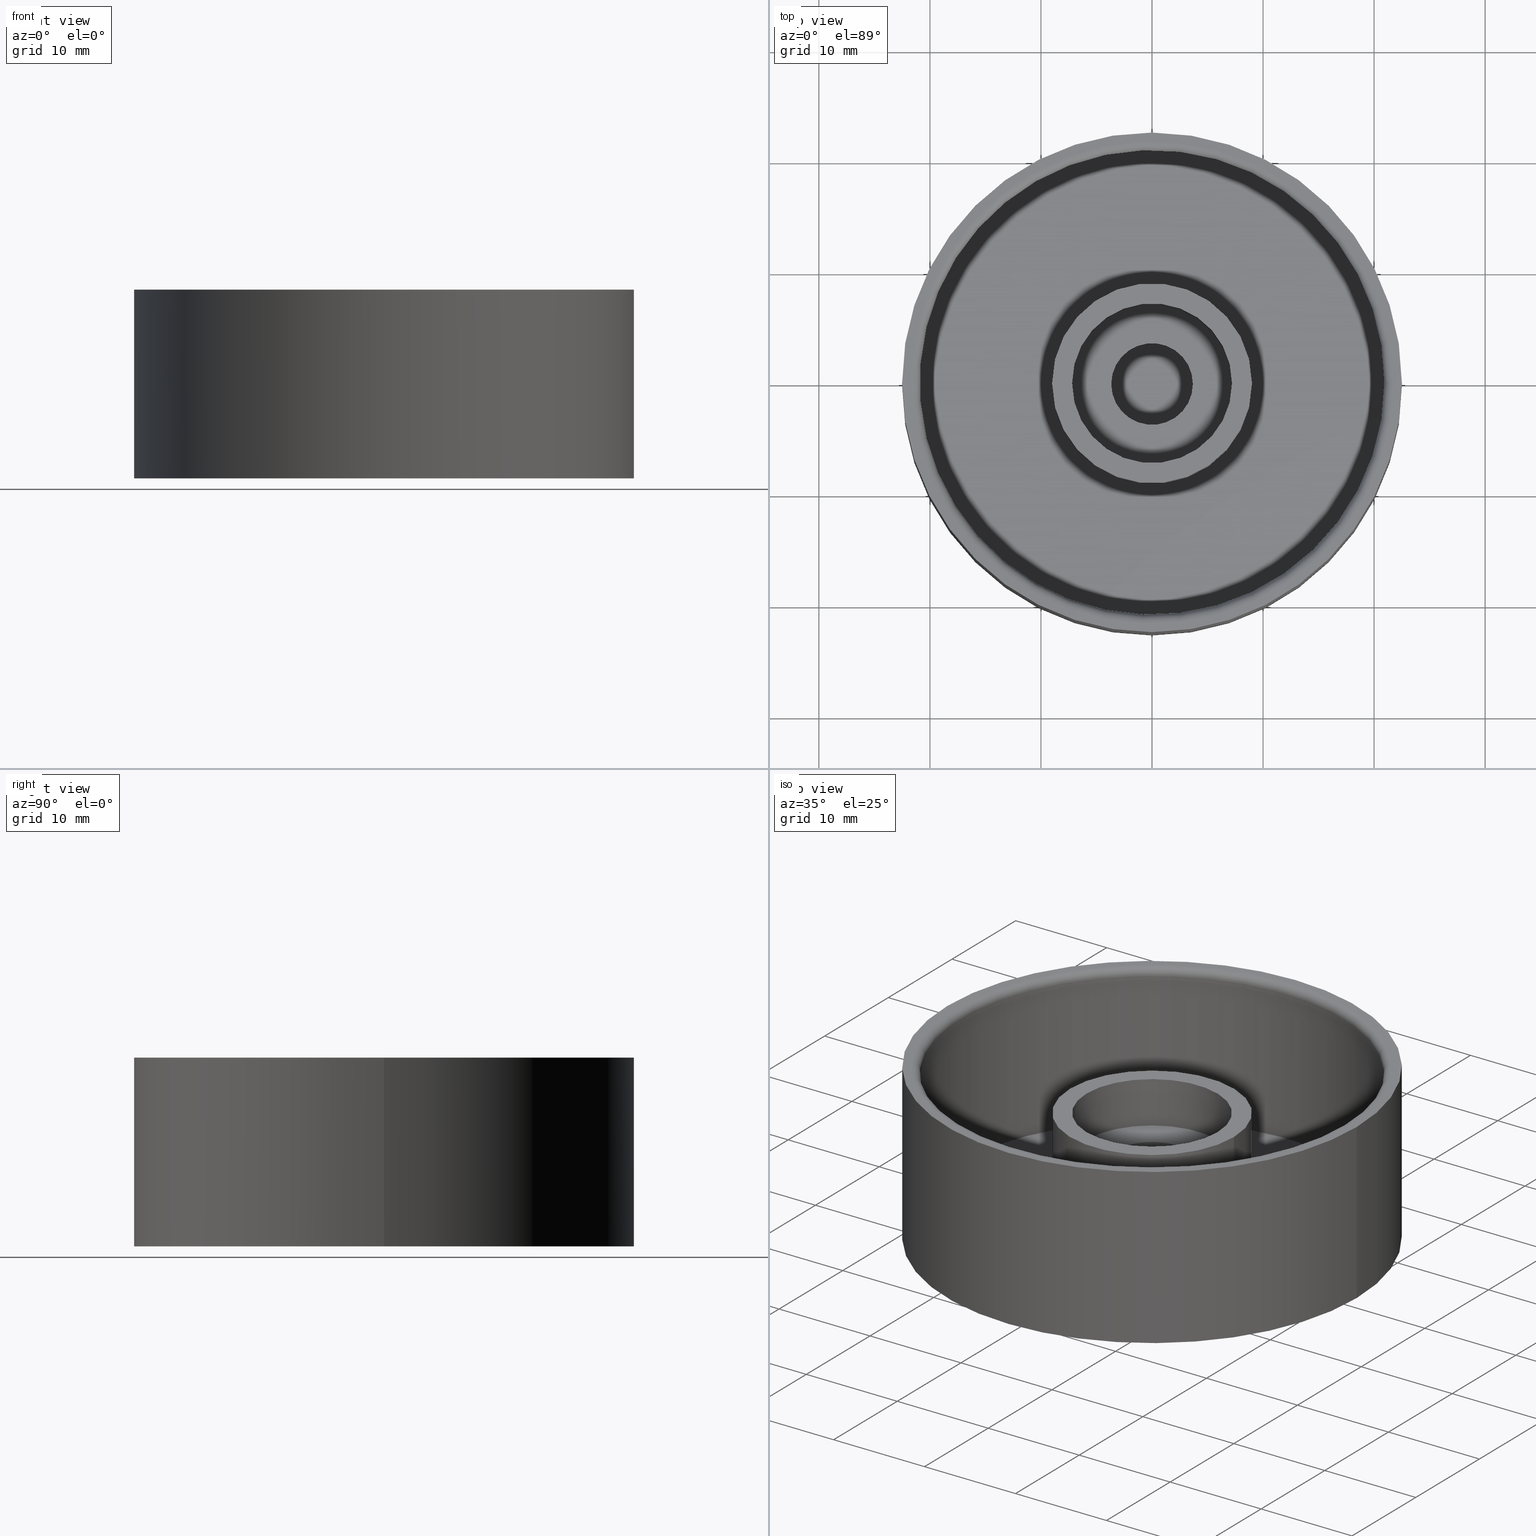
[diagram: canonical four-view strip — front | top / right | iso, engineering-drawing reading convention]
A machine part, canonical four-view strip (front | top / right | iso — engineering-drawing reading convention). The complete STEP part file that produces these views, byte-faithful:
ISO-10303-21;
HEADER;
FILE_DESCRIPTION (( 'STEP AP214' ),
    '1' );
FILE_NAME ('CS60-WINDOW-FOKUS.STEP',
    '2025-02-18T12:34:09',
    ( '' ),
    ( '' ),
    'SwSTEP 2.0',
    'SolidWorks 2024',
    '' );
FILE_SCHEMA (( 'AUTOMOTIVE_DESIGN' ));
ENDSEC;

DATA;
#1 = CARTESIAN_POINT ( 'NONE',  ( 0.000000000000000000, 0.000000000000000000, 0.4876968503937009203 ) ) ;
#2 = EDGE_CURVE ( 'NONE', #210, #126, #186, .T. ) ;
#3 = DIRECTION ( 'NONE',  ( 0.000000000000000000, 0.000000000000000000, 1.000000000000000000 ) ) ;
#4 = EDGE_LOOP ( 'NONE', ( #74 ) ) ;
#5 = CARTESIAN_POINT ( 'NONE',  ( 0.000000000000000000, 0.000000000000000000, 0.2187500000000000278 ) ) ;
#6 = AXIS2_PLACEMENT_3D ( 'NONE', #279, #294, #869 ) ;
#7 = EDGE_CURVE ( 'NONE', #596, #83, #863, .T. ) ;
#8 = CARTESIAN_POINT ( 'NONE',  ( -0.2107497972783792806, -0.2340613623550859557, 0.06250000000000001388 ) ) ;
#9 = CIRCLE ( 'NONE', #622, 0.2812499999999999445 ) ;
#10 = EDGE_CURVE ( 'NONE', #750, #545, #112, .T. ) ;
#11 = EDGE_LOOP ( 'NONE', ( #260 ) ) ;
#12 = CARTESIAN_POINT ( 'NONE',  ( 0.2812007874015747810, 0.000000000000000000, 0.2829724409448818867 ) ) ;
#13 = FACE_OUTER_BOUND ( 'NONE', #446, .T. ) ;
#14 = CARTESIAN_POINT ( 'NONE',  ( 0.000000000000000000, 0.000000000000000000, 0.3065944881889763329 ) ) ;
#15 = ORIENTED_EDGE ( 'NONE', *, *, #874, .F. ) ;
#16 = EDGE_CURVE ( 'NONE', #412, #585, #62, .T. ) ;
#17 = FACE_BOUND ( 'NONE', #829, .T. ) ;
#18 = FACE_OUTER_BOUND ( 'NONE', #98, .T. ) ;
#19 = CARTESIAN_POINT ( 'NONE',  ( -0.1881600533826031096, -0.2089729100776500093, 0.2199803149606299191 ) ) ;
#20 = ORIENTED_EDGE ( 'NONE', *, *, #934, .F. ) ;
#21 = ORIENTED_EDGE ( 'NONE', *, *, #846, .F. ) ;
#22 = PLANE ( 'NONE',  #788 ) ;
#23 = AXIS2_PLACEMENT_3D ( 'NONE', #827, #3, #889 ) ;
#24 = ORIENTED_EDGE ( 'NONE', *, *, #233, .F. ) ;
#25 = AXIS2_PLACEMENT_3D ( 'NONE', #431, #54, #358 ) ;
#26 = CARTESIAN_POINT ( 'NONE',  ( 0.3543307086614173040, 0.000000000000000000, 0.4876968503937009203 ) ) ;
#27 = ORIENTED_EDGE ( 'NONE', *, *, #121, .T. ) ;
#28 = DIRECTION ( 'NONE',  ( 1.000000000000000000, 0.000000000000000000, -0.000000000000000000 ) ) ;
#29 = EDGE_CURVE ( 'NONE', #650, #558, #571, .T. ) ;
#30 = DIRECTION ( 'NONE',  ( 1.000000000000000000, 0.000000000000000000, 0.000000000000000000 ) ) ;
#31 = ORIENTED_EDGE ( 'NONE', *, *, #317, .F. ) ;
#32 = CARTESIAN_POINT ( 'NONE',  ( 0.000000000000000000, 0.000000000000000000, 0.2593503937007873850 ) ) ;
#33 = FACE_BOUND ( 'NONE', #115, .T. ) ;
#34 = ORIENTED_EDGE ( 'NONE', *, *, #828, .F. ) ;
#35 = DIRECTION ( 'NONE',  ( 0.000000000000000000, 0.000000000000000000, 1.000000000000000000 ) ) ;
#36 = DIRECTION ( 'NONE',  ( -1.000000000000000000, 0.000000000000000000, 0.000000000000000000 ) ) ;
#37 = EDGE_CURVE ( 'NONE', #660, #326, #40, .T. ) ;
#38 = VERTEX_POINT ( 'NONE', #140 ) ;
#39 = EDGE_CURVE ( 'NONE', #895, #361, #713, .T. ) ;
#40 = CIRCLE ( 'NONE', #427, 0.2812499999999999445 ) ;
#41 = AXIS2_PLACEMENT_3D ( 'NONE', #192, #119, #36 ) ;
#42 = AXIS2_PLACEMENT_3D ( 'NONE', #134, #705, #777 ) ;
#43 = FACE_OUTER_BOUND ( 'NONE', #627, .T. ) ;
#44 = FACE_OUTER_BOUND ( 'NONE', #557, .T. ) ;
#45 = ORIENTED_EDGE ( 'NONE', *, *, #46, .T. ) ;
#46 = EDGE_CURVE ( 'NONE', #320, #83, #925, .T. ) ;
#47 = DIRECTION ( 'NONE',  ( -0.7431448254773976858, -0.6691306063588544628, 0.000000000000000000 ) ) ;
#48 = DIRECTION ( 'NONE',  ( 0.000000000000000000, 0.000000000000000000, 1.000000000000000000 ) ) ;
#49 = CARTESIAN_POINT ( 'NONE',  ( 0.000000000000000000, 0.000000000000000000, 0.2199803149606299191 ) ) ;
#50 = FACE_OUTER_BOUND ( 'NONE', #561, .T. ) ;
#51 = DIRECTION ( 'NONE',  ( -0.000000000000000000, -0.000000000000000000, 1.000000000000000000 ) ) ;
#52 = ORIENTED_EDGE ( 'NONE', *, *, #785, .F. ) ;
#53 = AXIS2_PLACEMENT_3D ( 'NONE', #893, #175, #310 ) ;
#54 = DIRECTION ( 'NONE',  ( 0.000000000000000000, 0.000000000000000000, 1.000000000000000000 ) ) ;
#55 = CIRCLE ( 'NONE', #938, 0.3149606299212598381 ) ;
#56 = FACE_OUTER_BOUND ( 'NONE', #825, .T. ) ;
#57 = FACE_OUTER_BOUND ( 'NONE', #784, .T. ) ;
#58 = EDGE_LOOP ( 'NONE', ( #861 ) ) ;
#59 = APPLICATION_CONTEXT ( 'automotive_design' ) ;
#60 = DIRECTION ( 'NONE',  ( -0.000000000000000000, -0.000000000000000000, -1.000000000000000000 ) ) ;
#61 = CARTESIAN_POINT ( 'NONE',  ( -0.1881600533826029986, -0.2089729100776501480, 0.2593503937007873850 ) ) ;
#62 = LINE ( 'NONE', #643, #211 ) ;
#63 = ORIENTED_EDGE ( 'NONE', *, *, #512, .T. ) ;
#64 = DIRECTION ( 'NONE',  ( -0.000000000000000000, -0.000000000000000000, -1.000000000000000000 ) ) ;
#65 = LINE ( 'NONE', #432, #835 ) ;
#66 = DIRECTION ( 'NONE',  ( 0.6666666666666668517, -0.7453559924999297870, 0.000000000000000000 ) ) ;
#67 = ORIENTED_EDGE ( 'NONE', *, *, #177, .T. ) ;
#68 = EDGE_CURVE ( 'NONE', #210, #361, #723, .T. ) ;
#69 = LENGTH_MEASURE_WITH_UNIT ( LENGTH_MEASURE( 0.02539999999999999897 ), #143 );
#70 = CLOSED_SHELL ( 'NONE', ( #926, #356, #615, #597, #290, #618, #714, #81, #696, #553, #273, #304, #321, #452, #589, #544, #128 ) ) ;
#71 = CIRCLE ( 'NONE', #820, 0.1446850393700787329 ) ;
#72 = FACE_OUTER_BOUND ( 'NONE', #375, .T. ) ;
#73 = DIRECTION ( 'NONE',  ( -1.000000000000000000, 0.000000000000000000, 0.000000000000000000 ) ) ;
#74 = ORIENTED_EDGE ( 'NONE', *, *, #354, .T. ) ;
#75 = DIRECTION ( 'NONE',  ( 1.000000000000000000, 0.000000000000000000, 0.000000000000000000 ) ) ;
#76 = DIRECTION ( 'NONE',  ( 0.6691306063588543518, 0.7431448254773975748, 0.000000000000000000 ) ) ;
#77 = CYLINDRICAL_SURFACE ( 'NONE', #648, 0.3149606299212598381 ) ;
#78 = ORIENTED_EDGE ( 'NONE', *, *, #775, .F. ) ;
#79 = VERTEX_POINT ( 'NONE', #443 ) ;
#80 = ADVANCED_FACE ( 'NONE', ( #795 ), #436, .T. ) ;
#81 = ADVANCED_FACE ( 'NONE', ( #57 ), #287, .F. ) ;
#82 = DIRECTION ( 'NONE',  ( 1.000000000000000000, 0.000000000000000000, 0.000000000000000000 ) ) ;
#83 = VERTEX_POINT ( 'NONE', #204 ) ;
#84 =( CONVERSION_BASED_UNIT ( 'INCH', #830 ) LENGTH_UNIT ( ) NAMED_UNIT ( #904 ) );
#85 = PLANE ( 'NONE',  #196 ) ;
#86 = DIRECTION ( 'NONE',  ( 0.000000000000000000, 0.000000000000000000, 1.000000000000000000 ) ) ;
#87 = VECTOR ( 'NONE', #150, 39.37007874015748854 ) ;
#88 = COLOUR_RGB ( '',0.7921568627450980005, 0.8196078431372548767, 0.9333333333333333481 ) ;
#89 = ORIENTED_EDGE ( 'NONE', *, *, #787, .F. ) ;
#90 = DIRECTION ( 'NONE',  ( -1.000000000000000000, 0.000000000000000000, 0.000000000000000000 ) ) ;
#91 = CARTESIAN_POINT ( 'NONE',  ( 0.1881600533826031096, 0.2089729100776501480, 0.06249999999999995143 ) ) ;
#92 = DIRECTION ( 'NONE',  ( 1.000000000000000000, 0.000000000000000000, 0.000000000000000000 ) ) ;
#93 = ADVANCED_FACE ( 'NONE', ( #724, #445 ), #498, .F. ) ;
#94 = EDGE_LOOP ( 'NONE', ( #704 ) ) ;
#95 = DIRECTION ( 'NONE',  ( -0.000000000000000000, -0.000000000000000000, -1.000000000000000000 ) ) ;
#96 = EDGE_LOOP ( 'NONE', ( #691 ) ) ;
#97 = CARTESIAN_POINT ( 'NONE',  ( 0.000000000000000000, 0.000000000000000000, 0.6692913385826771977 ) ) ;
#98 = EDGE_LOOP ( 'NONE', ( #461, #333, #20, #908 ) ) ;
#99 = EDGE_CURVE ( 'NONE', #931, #126, #581, .T. ) ;
#100 = ORIENTED_EDGE ( 'NONE', *, *, #372, .T. ) ;
#101 = DIRECTION ( 'NONE',  ( -1.000000000000000000, 1.776356839400250465E-15, 0.000000000000000000 ) ) ;
#102 = PRODUCT_DEFINITION_SHAPE ( 'NONE', 'NONE',  #465 ) ;
#103 = PLANE ( 'NONE',  #23 ) ;
#104 = CIRCLE ( 'NONE', #633, 0.3149606299212598381 ) ;
#105 = ORIENTED_EDGE ( 'NONE', *, *, #68, .T. ) ;
#106 = AXIS2_PLACEMENT_3D ( 'NONE', #1, #800, #229 ) ;
#107 = EDGE_CURVE ( 'NONE', #623, #699, #783, .T. ) ;
#108 = DIRECTION ( 'NONE',  ( -0.000000000000000000, -0.000000000000000000, 1.000000000000000000 ) ) ;
#109 = DIRECTION ( 'NONE',  ( -1.000000000000000000, 0.000000000000000000, 0.000000000000000000 ) ) ;
#110 = EDGE_LOOP ( 'NONE', ( #325 ) ) ;
#111 = DIRECTION ( 'NONE',  ( 0.000000000000000000, 0.000000000000000000, 1.000000000000000000 ) ) ;
#112 = LINE ( 'NONE', #483, #470 ) ;
#113 = CARTESIAN_POINT ( 'NONE',  ( 0.1881600533826031096, -0.2089729100776501480, 0.06249999999999995143 ) ) ;
#114 = CARTESIAN_POINT ( 'NONE',  ( 0.000000000000000000, 0.000000000000000000, 0.3065944881889763329 ) ) ;
#115 = EDGE_LOOP ( 'NONE', ( #264 ) ) ;
#116 = CIRCLE ( 'NONE', #397, 0.8533267716535429814 ) ;
#117 = ORIENTED_EDGE ( 'NONE', *, *, #37, .F. ) ;
#118 = AXIS2_PLACEMENT_3D ( 'NONE', #884, #540, #453 ) ;
#119 = DIRECTION ( 'NONE',  ( 0.000000000000000000, 0.000000000000000000, -1.000000000000000000 ) ) ;
#120 = ORIENTED_EDGE ( 'NONE', *, *, #469, .F. ) ;
#121 = EDGE_CURVE ( 'NONE', #598, #598, #801, .T. ) ;
#122 = ORIENTED_EDGE ( 'NONE', *, *, #805, .F. ) ;
#123 = CARTESIAN_POINT ( 'NONE',  ( 0.000000000000000000, 0.000000000000000000, 0.000000000000000000 ) ) ;
#124 = DIRECTION ( 'NONE',  ( 0.7453559924999297870, 0.6666666666666668517, -0.000000000000000000 ) ) ;
#125 = CARTESIAN_POINT ( 'NONE',  ( 0.000000000000000000, 0.000000000000000000, 0.6692913385826771977 ) ) ;
#126 = VERTEX_POINT ( 'NONE', #860 ) ;
#127 = ORIENTED_EDGE ( 'NONE', *, *, #608, .F. ) ;
#128 = ADVANCED_FACE ( 'NONE', ( #944, #731 ), #77, .T. ) ;
#129 = CARTESIAN_POINT ( 'NONE',  ( 0.1875000000000000555, -0.2096313728906052110, 0.2187500000000000278 ) ) ;
#130 = FACE_OUTER_BOUND ( 'NONE', #330, .T. ) ;
#131 = CARTESIAN_POINT ( 'NONE',  ( 0.000000000000000000, 0.000000000000000000, 0.06250000000000001388 ) ) ;
#132 = ORIENTED_EDGE ( 'NONE', *, *, #10, .T. ) ;
#133 = CIRCLE ( 'NONE', #937, 0.3149606299212598381 ) ;
#134 = CARTESIAN_POINT ( 'NONE',  ( -0.1875000000000000555, -0.2096313728906052110, 0.2187500000000000278 ) ) ;
#135 = CIRCLE ( 'NONE', #25, 0.3149606299212598381 ) ;
#136 = CARTESIAN_POINT ( 'NONE',  ( 0.000000000000000000, 0.000000000000000000, 0.06250000000000001388 ) ) ;
#137 = DIRECTION ( 'NONE',  ( -0.6691306063588517983, -0.7431448254773999063, 0.000000000000000000 ) ) ;
#138 = EDGE_LOOP ( 'NONE', ( #27 ) ) ;
#139 = LINE ( 'NONE', #286, #636 ) ;
#140 = CARTESIAN_POINT ( 'NONE',  ( 0.2099737532808400031, 0.2347577929133637387, 0.06250000000000001388 ) ) ;
#141 = EDGE_CURVE ( 'NONE', #684, #927, #501, .T. ) ;
#142 = ORIENTED_EDGE ( 'NONE', *, *, #874, .T. ) ;
#143 =( LENGTH_UNIT ( ) NAMED_UNIT ( * ) SI_UNIT ( $, .METRE. ) );
#144 = CARTESIAN_POINT ( 'NONE',  ( 0.000000000000000000, 0.000000000000000000, 0.06250000000000001388 ) ) ;
#145 = EDGE_CURVE ( 'NONE', #941, #941, #116, .T. ) ;
#146 = EDGE_LOOP ( 'NONE', ( #274 ) ) ;
#147 = VERTEX_POINT ( 'NONE', #527 ) ;
#148 = AXIS2_PLACEMENT_3D ( 'NONE', #144, #426, #152 ) ;
#149 = AXIS2_PLACEMENT_3D ( 'NONE', #399, #614, #30 ) ;
#150 = DIRECTION ( 'NONE',  ( -0.6691306063588529085, 0.7431448254773989071, 0.000000000000000000 ) ) ;
#151 = AXIS2_PLACEMENT_3D ( 'NONE', #770, #108, #101 ) ;
#152 = DIRECTION ( 'NONE',  ( 1.000000000000000000, 0.000000000000000000, 0.000000000000000000 ) ) ;
#153 = ORIENTED_EDGE ( 'NONE', *, *, #155, .F. ) ;
#154 = CARTESIAN_POINT ( 'NONE',  ( 0.1881600533826031096, -0.2089729100776501480, 0.2593503937007873850 ) ) ;
#155 = EDGE_CURVE ( 'NONE', #644, #684, #517, .T. ) ;
#156 = CARTESIAN_POINT ( 'NONE',  ( -0.1881600533826029986, -0.2089729100776501480, 0.06249999999999995143 ) ) ;
#157 = DIRECTION ( 'NONE',  ( 1.000000000000000000, 0.000000000000000000, 0.000000000000000000 ) ) ;
#158 = VERTEX_POINT ( 'NONE', #8 ) ;
#159 = CARTESIAN_POINT ( 'NONE',  ( 0.2099737532808400031, -0.2347577929133637387, 0.06250000000000001388 ) ) ;
#160 = CARTESIAN_POINT ( 'NONE',  ( -0.1875000000000000555, -0.2096313728906052110, 0.2187500000000000278 ) ) ;
#161 = CARTESIAN_POINT ( 'NONE',  ( -0.2299807162800313332, 0.2554194616699875797, 0.2199803149606299191 ) ) ;
#162 = ORIENTED_EDGE ( 'NONE', *, *, #7, .T. ) ;
#163 = CARTESIAN_POINT ( 'NONE',  ( -0.2099737532808399754, -0.2347577929133637387, 0.2187500000000000278 ) ) ;
#164 = DIRECTION ( 'NONE',  ( -1.000000000000000000, 0.000000000000000000, -0.000000000000000000 ) ) ;
#165 = DIRECTION ( 'NONE',  ( -0.000000000000000000, -0.000000000000000000, -1.000000000000000000 ) ) ;
#166 = PRESENTATION_LAYER_ASSIGNMENT (  '', '', ( #367 ) ) ;
#167 = EDGE_LOOP ( 'NONE', ( #885, #808, #34, #63 ) ) ;
#168 = CARTESIAN_POINT ( 'NONE',  ( 0.000000000000000000, 0.000000000000000000, 0.06249999999999995143 ) ) ;
#169 = CARTESIAN_POINT ( 'NONE',  ( 0.1875000000000000555, 0.2096313728906052110, 0.2187500000000000278 ) ) ;
#170 = FACE_OUTER_BOUND ( 'NONE', #248, .T. ) ;
#171 = ADVANCED_FACE ( 'NONE', ( #812 ), #22, .F. ) ;
#172 = ORIENTED_EDGE ( 'NONE', *, *, #414, .T. ) ;
#173 = ORIENTED_EDGE ( 'NONE', *, *, #317, .T. ) ;
#174 = CARTESIAN_POINT ( 'NONE',  ( 0.000000000000000000, 0.000000000000000000, 0.3065944881889763884 ) ) ;
#175 = DIRECTION ( 'NONE',  ( 0.000000000000000000, 0.000000000000000000, 1.000000000000000000 ) ) ;
#176 = ORIENTED_EDGE ( 'NONE', *, *, #200, .T. ) ;
#177 = EDGE_CURVE ( 'NONE', #927, #38, #104, .T. ) ;
#178 = CARTESIAN_POINT ( 'NONE',  ( 0.1881600533826031096, -0.2089729100776501480, 0.2593503937007873850 ) ) ;
#179 = PLANE ( 'NONE',  #725 ) ;
#180 = VECTOR ( 'NONE', #840, 39.37007874015748143 ) ;
#181 = EDGE_LOOP ( 'NONE', ( #221, #315, #819, #45 ) ) ;
#182 = AXIS2_PLACEMENT_3D ( 'NONE', #533, #444, #663 ) ;
#183 = EDGE_CURVE ( 'NONE', #583, #583, #227, .T. ) ;
#184 = DIRECTION ( 'NONE',  ( 0.000000000000000000, 0.000000000000000000, 1.000000000000000000 ) ) ;
#185 = CYLINDRICAL_SURFACE ( 'NONE', #41, 0.3149606299212598381 ) ;
#186 = LINE ( 'NONE', #842, #692 ) ;
#187 = CARTESIAN_POINT ( 'NONE',  ( 0.000000000000000000, 0.000000000000000000, 0.000000000000000000 ) ) ;
#188 = DIRECTION ( 'NONE',  ( 0.000000000000000000, 0.000000000000000000, 1.000000000000000000 ) ) ;
#189 = DIRECTION ( 'NONE',  ( -1.000000000000000000, 0.000000000000000000, 0.000000000000000000 ) ) ;
#190 = ORIENTED_EDGE ( 'NONE', *, *, #569, .F. ) ;
#191 = DIRECTION ( 'NONE',  ( -0.000000000000000000, -0.000000000000000000, -1.000000000000000000 ) ) ;
#192 = CARTESIAN_POINT ( 'NONE',  ( 0.000000000000000000, 0.000000000000000000, 0.3065944881889763884 ) ) ;
#193 = ORIENTED_EDGE ( 'NONE', *, *, #856, .F. ) ;
#194 = VECTOR ( 'NONE', #137, 39.37007874015748854 ) ;
#195 = VECTOR ( 'NONE', #898, 39.37007874015748143 ) ;
#196 = AXIS2_PLACEMENT_3D ( 'NONE', #669, #816, #164 ) ;
#197 = DIRECTION ( 'NONE',  ( 1.000000000000000000, 0.000000000000000000, 0.000000000000000000 ) ) ;
#198 = DIRECTION ( 'NONE',  ( 0.000000000000000000, 0.000000000000000000, 1.000000000000000000 ) ) ;
#199 = EDGE_LOOP ( 'NONE', ( #853 ) ) ;
#200 = EDGE_CURVE ( 'NONE', #345, #545, #838, .T. ) ;
#201 = EDGE_LOOP ( 'NONE', ( #237, #677, #389, #117 ) ) ;
#202 = LINE ( 'NONE', #566, #520 ) ;
#203 = CARTESIAN_POINT ( 'NONE',  ( 0.000000000000000000, 0.000000000000000000, 0.4876968503937009203 ) ) ;
#204 = CARTESIAN_POINT ( 'NONE',  ( -0.2107497972783793083, -0.2340613623550858724, 0.2199803149606299191 ) ) ;
#205 = ORIENTED_EDGE ( 'NONE', *, *, #255, .F. ) ;
#206 = DIRECTION ( 'NONE',  ( 0.6691306063588543518, 0.7431448254773976858, 0.000000000000000000 ) ) ;
#207 = PLANE ( 'NONE',  #246 ) ;
#208 = UNCERTAINTY_MEASURE_WITH_UNIT (LENGTH_MEASURE( 1.000000000000000082E-05 ), #892, 'distance_accuracy_value', 'NONE');
#209 = CARTESIAN_POINT ( 'NONE',  ( 0.000000000000000000, 0.000000000000000000, 0.3065944881889763884 ) ) ;
#210 = VERTEX_POINT ( 'NONE', #319 ) ;
#211 = VECTOR ( 'NONE', #511, 39.37007874015748143 ) ;
#212 = CARTESIAN_POINT ( 'NONE',  ( 0.1875000000000000555, 0.2096313728906052110, 0.2187500000000000278 ) ) ;
#213 = CIRCLE ( 'NONE', #151, 0.3149606299212598381 ) ;
#214 = ADVANCED_FACE ( 'NONE', ( #245 ), #807, .F. ) ;
#215 = DIRECTION ( 'NONE',  ( 1.000000000000000000, 0.000000000000000000, 0.000000000000000000 ) ) ;
#216 = ORIENTED_EDGE ( 'NONE', *, *, #2, .F. ) ;
#217 = FILL_AREA_STYLE_COLOUR ( '', #88 ) ;
#218 = DIRECTION ( 'NONE',  ( -0.000000000000000000, -0.000000000000000000, -1.000000000000000000 ) ) ;
#219 = EDGE_CURVE ( 'NONE', #514, #514, #538, .T. ) ;
#220 = CARTESIAN_POINT ( 'NONE',  ( -0.1881600533826029986, 0.2089729100776501480, 0.2593503937007873850 ) ) ;
#221 = ORIENTED_EDGE ( 'NONE', *, *, #7, .F. ) ;
#222 = FACE_OUTER_BOUND ( 'NONE', #637, .T. ) ;
#223 = CARTESIAN_POINT ( 'NONE',  ( 0.1881600533826031096, 0.2089729100776501480, 0.2593503937007873850 ) ) ;
#224 = CARTESIAN_POINT ( 'NONE',  ( 0.000000000000000000, 0.000000000000000000, 0.6692913385826771977 ) ) ;
#225 = ORIENTED_EDGE ( 'NONE', *, *, #676, .F. ) ;
#226 = VERTEX_POINT ( 'NONE', #521 ) ;
#227 = CIRCLE ( 'NONE', #592, 0.2834645669291338543 ) ;
#228 = AXIS2_PLACEMENT_3D ( 'NONE', #250, #543, #82 ) ;
#229 = DIRECTION ( 'NONE',  ( -1.000000000000000000, 0.000000000000000000, 0.000000000000000000 ) ) ;
#230 = MECHANICAL_DESIGN_GEOMETRIC_PRESENTATION_REPRESENTATION (  '', ( #367 ), #757 ) ;
#231 = PLANE ( 'NONE',  #487 ) ;
#232 = ORIENTED_EDGE ( 'NONE', *, *, #99, .T. ) ;
#233 = EDGE_CURVE ( 'NONE', #799, #799, #894, .T. ) ;
#234 =( NAMED_UNIT ( * ) SI_UNIT ( $, .STERADIAN. ) SOLID_ANGLE_UNIT ( ) );
#235 = DIRECTION ( 'NONE',  ( 1.000000000000000000, 0.000000000000000000, -0.000000000000000000 ) ) ;
#236 = FACE_OUTER_BOUND ( 'NONE', #11, .T. ) ;
#237 = ORIENTED_EDGE ( 'NONE', *, *, #687, .F. ) ;
#238 = VERTEX_POINT ( 'NONE', #896 ) ;
#239 = DIRECTION ( 'NONE',  ( -0.6691306063588543518, -0.7431448254773975748, 0.000000000000000000 ) ) ;
#240 = CYLINDRICAL_SURFACE ( 'NONE', #118, 0.1446850393700787329 ) ;
#241 = ORIENTED_EDGE ( 'NONE', *, *, #815, .F. ) ;
#242 = DIRECTION ( 'NONE',  ( -0.000000000000000000, -0.000000000000000000, -1.000000000000000000 ) ) ;
#243 =( NAMED_UNIT ( * ) SI_UNIT ( $, .STERADIAN. ) SOLID_ANGLE_UNIT ( ) );
#244 = EDGE_CURVE ( 'NONE', #596, #345, #314, .T. ) ;
#245 = FACE_OUTER_BOUND ( 'NONE', #603, .T. ) ;
#246 = AXIS2_PLACEMENT_3D ( 'NONE', #125, #368, #782 ) ;
#247 = AXIS2_PLACEMENT_3D ( 'NONE', #32, #191, #911 ) ;
#248 = EDGE_LOOP ( 'NONE', ( #513 ) ) ;
#249 = FILL_AREA_STYLE_COLOUR ( '', #428 ) ;
#250 = CARTESIAN_POINT ( 'NONE',  ( 0.000000000000000000, 0.000000000000000000, 0.6392913385826772821 ) ) ;
#251 = EDGE_LOOP ( 'NONE', ( #341 ) ) ;
#252 = DIRECTION ( 'NONE',  ( 1.000000000000000000, 0.000000000000000000, 0.000000000000000000 ) ) ;
#253 = DIRECTION ( 'NONE',  ( -0.000000000000000000, -0.000000000000000000, -1.000000000000000000 ) ) ;
#254 = ORIENTED_EDGE ( 'NONE', *, *, #569, .T. ) ;
#255 = EDGE_CURVE ( 'NONE', #158, #83, #599, .T. ) ;
#256 = LINE ( 'NONE', #559, #339 ) ;
#257 = DIRECTION ( 'NONE',  ( 0.000000000000000000, 0.000000000000000000, 1.000000000000000000 ) ) ;
#258 = VECTOR ( 'NONE', #866, 39.37007874015748143 ) ;
#259 = PRESENTATION_LAYER_ASSIGNMENT (  '', '', ( #519 ) ) ;
#260 = ORIENTED_EDGE ( 'NONE', *, *, #815, .T. ) ;
#261 = VECTOR ( 'NONE', #242, 39.37007874015748143 ) ;
#262 = PLANE ( 'NONE',  #708 ) ;
#263 = CARTESIAN_POINT ( 'NONE',  ( 0.000000000000000000, 0.000000000000000000, 0.4876968503937009203 ) ) ;
#264 = ORIENTED_EDGE ( 'NONE', *, *, #734, .T. ) ;
#265 = ORIENTED_EDGE ( 'NONE', *, *, #404, .T. ) ;
#266 = EDGE_CURVE ( 'NONE', #147, #147, #756, .T. ) ;
#267 = PLANE ( 'NONE',  #400 ) ;
#268 = DIRECTION ( 'NONE',  ( 1.000000000000000000, 0.000000000000000000, 0.000000000000000000 ) ) ;
#269 = ORIENTED_EDGE ( 'NONE', *, *, #482, .F. ) ;
#270 = APPLICATION_PROTOCOL_DEFINITION ( 'draft international standard', 'automotive_design', 1998, #59 ) ;
#271 = LINE ( 'NONE', #786, #850 ) ;
#272 = PLANE ( 'NONE',  #350 ) ;
#273 = ADVANCED_FACE ( 'NONE', ( #877, #449 ), #103, .F. ) ;
#274 = ORIENTED_EDGE ( 'NONE', *, *, #145, .F. ) ;
#275 = AXIS2_PLACEMENT_3D ( 'NONE', #640, #574, #73 ) ;
#276 = AXIS2_PLACEMENT_3D ( 'NONE', #706, #500, #655 ) ;
#277 = VECTOR ( 'NONE', #836, 39.37007874015748143 ) ;
#278 = LINE ( 'NONE', #868, #910 ) ;
#279 = CARTESIAN_POINT ( 'NONE',  ( 0.000000000000000000, 0.000000000000000000, 0.06250000000000001388 ) ) ;
#280 = ORIENTED_EDGE ( 'NONE', *, *, #645, .T. ) ;
#281 = DIRECTION ( 'NONE',  ( 0.000000000000000000, 0.000000000000000000, 1.000000000000000000 ) ) ;
#282 = PLANE ( 'NONE',  #398 ) ;
#283 = DIRECTION ( 'NONE',  ( 0.000000000000000000, 0.000000000000000000, 1.000000000000000000 ) ) ;
#284 = EDGE_LOOP ( 'NONE', ( #535 ) ) ;
#285 = ADVANCED_FACE ( 'NONE', ( #377 ), #231, .F. ) ;
#286 = CARTESIAN_POINT ( 'NONE',  ( -0.1875000000000000555, -0.2096313728906052110, 0.2187500000000000278 ) ) ;
#287 = PLANE ( 'NONE',  #818 ) ;
#288 = EDGE_LOOP ( 'NONE', ( #721, #396, #475, #433 ) ) ;
#289 = AXIS2_PLACEMENT_3D ( 'NONE', #374, #709, #355 ) ;
#290 = ADVANCED_FACE ( 'NONE', ( #524, #530 ), #674, .T. ) ;
#291 = VECTOR ( 'NONE', #218, 39.37007874015748143 ) ;
#292 = CARTESIAN_POINT ( 'NONE',  ( -0.2107497972783792806, 0.2340613623550859557, 0.06250000000000001388 ) ) ;
#293 = AXIS2_PLACEMENT_3D ( 'NONE', #906, #327, #619 ) ;
#294 = DIRECTION ( 'NONE',  ( -0.000000000000000000, -0.000000000000000000, -1.000000000000000000 ) ) ;
#295 = ORIENTED_EDGE ( 'NONE', *, *, #145, .T. ) ;
#296 = CARTESIAN_POINT ( 'NONE',  ( 0.8533267716535429814, 0.000000000000000000, 0.6692913385826771977 ) ) ;
#297 = PRODUCT_RELATED_PRODUCT_CATEGORY ( 'part', '', ( #515 ) ) ;
#298 = DIRECTION ( 'NONE',  ( -0.000000000000000000, -0.000000000000000000, -1.000000000000000000 ) ) ;
#299 = UNCERTAINTY_MEASURE_WITH_UNIT (LENGTH_MEASURE( 1.000000000000000082E-05 ), #366, 'distance_accuracy_value', 'NONE');
#300 = DIRECTION ( 'NONE',  ( -1.000000000000000000, 0.000000000000000000, 0.000000000000000000 ) ) ;
#301 = ORIENTED_EDGE ( 'NONE', *, *, #177, .F. ) ;
#302 = DIRECTION ( 'NONE',  ( 1.000000000000000000, 0.000000000000000000, -0.000000000000000000 ) ) ;
#303 = DIRECTION ( 'NONE',  ( 1.000000000000000000, 0.000000000000000000, 0.000000000000000000 ) ) ;
#304 = ADVANCED_FACE ( 'NONE', ( #236, #467 ), #240, .F. ) ;
#305 = ORIENTED_EDGE ( 'NONE', *, *, #942, .T. ) ;
#306 = CARTESIAN_POINT ( 'NONE',  ( 0.000000000000000000, 0.000000000000000000, 0.2187500000000000278 ) ) ;
#307 = VECTOR ( 'NONE', #761, 39.37007874015748143 ) ;
#308 = LINE ( 'NONE', #529, #474 ) ;
#309 = CIRCLE ( 'NONE', #430, 0.2812499999999999445 ) ;
#310 = DIRECTION ( 'NONE',  ( 1.000000000000000000, 0.000000000000000000, -0.000000000000000000 ) ) ;
#311 = ORIENTED_EDGE ( 'NONE', *, *, #99, .F. ) ;
#312 = DIRECTION ( 'NONE',  ( -0.000000000000000000, -0.000000000000000000, -1.000000000000000000 ) ) ;
#313 = CARTESIAN_POINT ( 'NONE',  ( 0.2299807162800313887, -0.2554194616699875242, 0.2199803149606299191 ) ) ;
#314 = LINE ( 'NONE', #161, #549 ) ;
#315 = ORIENTED_EDGE ( 'NONE', *, *, #244, .T. ) ;
#316 = CARTESIAN_POINT ( 'NONE',  ( -0.1875000000000000555, 0.2096313728906052110, 0.2187500000000000278 ) ) ;
#317 = EDGE_CURVE ( 'NONE', #79, #79, #71, .T. ) ;
#318 = PRESENTATION_STYLE_ASSIGNMENT (( #744 ) ) ;
#319 = CARTESIAN_POINT ( 'NONE',  ( -0.2099737532808400031, 0.2347577929133637387, 0.06250000000000001388 ) ) ;
#320 = VERTEX_POINT ( 'NONE', #19 ) ;
#321 = ADVANCED_FACE ( 'NONE', ( #170, #749 ), #272, .T. ) ;
#322 = VECTOR ( 'NONE', #560, 39.37007874015748143 ) ;
#323 = CARTESIAN_POINT ( 'NONE',  ( -0.1875000000000000555, 0.2096313728906052110, 0.2187500000000000278 ) ) ;
#324 = CIRCLE ( 'NONE', #605, 0.2812007874015748921 ) ;
#325 = ORIENTED_EDGE ( 'NONE', *, *, #858, .F. ) ;
#326 = VERTEX_POINT ( 'NONE', #851 ) ;
#327 = DIRECTION ( 'NONE',  ( -0.000000000000000000, -0.000000000000000000, -1.000000000000000000 ) ) ;
#328 = DIRECTION ( 'NONE',  ( 1.000000000000000000, 0.000000000000000000, 0.000000000000000000 ) ) ;
#329 = ADVANCED_FACE ( 'NONE', ( #563 ), #179, .T. ) ;
#330 = EDGE_LOOP ( 'NONE', ( #450 ) ) ;
#331 = CARTESIAN_POINT ( 'NONE',  ( 0.2107497972783793361, 0.2340613623550858724, 0.3065944881889763884 ) ) ;
#332 = PLANE ( 'NONE',  #878 ) ;
#333 = ORIENTED_EDGE ( 'NONE', *, *, #384, .F. ) ;
#334 = CARTESIAN_POINT ( 'NONE',  ( -0.1875000000000000555, -0.2096313728906052110, 0.06250000000000001388 ) ) ;
#335 = CARTESIAN_POINT ( 'NONE',  ( -0.1875000000000000555, -0.2096313728906052110, 0.2187500000000000278 ) ) ;
#336 = VECTOR ( 'NONE', #797, 39.37007874015748143 ) ;
#337 = VECTOR ( 'NONE', #394, 39.37007874015748143 ) ;
#338 = ORIENTED_EDGE ( 'NONE', *, *, #495, .T. ) ;
#339 = VECTOR ( 'NONE', #546, 39.37007874015748143 ) ;
#340 = DIRECTION ( 'NONE',  ( -0.000000000000000000, -0.000000000000000000, 1.000000000000000000 ) ) ;
#341 = ORIENTED_EDGE ( 'NONE', *, *, #233, .T. ) ;
#342 = ADVANCED_FACE ( 'NONE', ( #547, #612 ), #576, .T. ) ;
#343 = CARTESIAN_POINT ( 'NONE',  ( 0.1875000000000000555, 0.2096313728906052110, 0.06250000000000001388 ) ) ;
#344 = PLANE ( 'NONE',  #564 ) ;
#345 = VERTEX_POINT ( 'NONE', #912 ) ;
#346 = EDGE_LOOP ( 'NONE', ( #241 ) ) ;
#347 = CARTESIAN_POINT ( 'NONE',  ( 0.2107497972783793083, 0.2340613623550859557, 0.2199803149606299191 ) ) ;
#348 = ORIENTED_EDGE ( 'NONE', *, *, #580, .T. ) ;
#349 = VECTOR ( 'NONE', #792, 39.37007874015748854 ) ;
#350 = AXIS2_PLACEMENT_3D ( 'NONE', #405, #48, #621 ) ;
#351 = ORIENTED_EDGE ( 'NONE', *, *, #903, .F. ) ;
#352 = AXIS2_PLACEMENT_3D ( 'NONE', #882, #391, #235 ) ;
#353 = DIRECTION ( 'NONE',  ( 0.000000000000000000, 0.000000000000000000, 1.000000000000000000 ) ) ;
#354 = EDGE_CURVE ( 'NONE', #729, #729, #365, .T. ) ;
#355 = DIRECTION ( 'NONE',  ( 1.000000000000000000, 0.000000000000000000, -0.000000000000000000 ) ) ;
#356 = ADVANCED_FACE ( 'NONE', ( #44 ), #344, .F. ) ;
#357 = EDGE_LOOP ( 'NONE', ( #190, #747, #494, #351 ) ) ;
#358 = DIRECTION ( 'NONE',  ( 1.000000000000000000, 0.000000000000000000, 0.000000000000000000 ) ) ;
#359 = DIRECTION ( 'NONE',  ( 0.7431448254773976858, -0.6691306063588544628, 0.000000000000000000 ) ) ;
#360 = VERTEX_POINT ( 'NONE', #507 ) ;
#361 = VERTEX_POINT ( 'NONE', #698 ) ;
#362 = PRESENTATION_STYLE_ASSIGNMENT (( #505 ) ) ;
#363 = DIRECTION ( 'NONE',  ( 1.000000000000000000, 0.000000000000000000, 0.000000000000000000 ) ) ;
#364 = VERTEX_POINT ( 'NONE', #690 ) ;
#365 = CIRCLE ( 'NONE', #864, 0.2834645669291338543 ) ;
#366 =( CONVERSION_BASED_UNIT ( 'INCH', #69 ) LENGTH_UNIT ( ) NAMED_UNIT ( #616 ) );
#367 = STYLED_ITEM ( 'NONE', ( #362 ), #881 ) ;
#368 = DIRECTION ( 'NONE',  ( 0.000000000000000000, 0.000000000000000000, 1.000000000000000000 ) ) ;
#369 = CARTESIAN_POINT ( 'NONE',  ( -0.1875000000000000555, 0.2096313728906052110, 0.2187500000000000278 ) ) ;
#370 = EDGE_LOOP ( 'NONE', ( #172, #917, #311, #776 ) ) ;
#371 = CARTESIAN_POINT ( 'NONE',  ( 0.2834645669291338543, 0.000000000000000000, 0.4876968503937009203 ) ) ;
#372 = EDGE_CURVE ( 'NONE', #895, #613, #683, .T. ) ;
#373 =( LENGTH_UNIT ( ) NAMED_UNIT ( * ) SI_UNIT ( $, .METRE. ) );
#374 = CARTESIAN_POINT ( 'NONE',  ( 0.000000000000000000, 0.000000000000000000, 0.2187500000000000278 ) ) ;
#375 = EDGE_LOOP ( 'NONE', ( #378 ) ) ;
#376 = PLANE ( 'NONE',  #182 ) ;
#377 = FACE_OUTER_BOUND ( 'NONE', #509, .T. ) ;
#378 = ORIENTED_EDGE ( 'NONE', *, *, #219, .T. ) ;
#379 = PLANE ( 'NONE',  #352 ) ;
#380 = MECHANICAL_DESIGN_GEOMETRIC_PRESENTATION_REPRESENTATION (  '', ( #519 ), #502 ) ;
#381 =( NAMED_UNIT ( * ) PLANE_ANGLE_UNIT ( ) SI_UNIT ( $, .RADIAN. ) );
#382 = AXIS2_PLACEMENT_3D ( 'NONE', #689, #35, #434 ) ;
#383 = DIRECTION ( 'NONE',  ( -1.000000000000000000, 0.000000000000000000, 0.000000000000000000 ) ) ;
#384 = EDGE_CURVE ( 'NONE', #650, #684, #759, .T. ) ;
#385 = ORIENTED_EDGE ( 'NONE', *, *, #244, .F. ) ;
#386 = DIRECTION ( 'NONE',  ( 1.000000000000000000, 0.000000000000000000, 0.000000000000000000 ) ) ;
#387 = CARTESIAN_POINT ( 'NONE',  ( 0.000000000000000000, 0.000000000000000000, 0.2187500000000000278 ) ) ;
#388 = CARTESIAN_POINT ( 'NONE',  ( 0.000000000000000000, 0.000000000000000000, 0.2187500000000000278 ) ) ;
#389 = ORIENTED_EDGE ( 'NONE', *, *, #414, .F. ) ;
#390 = EDGE_CURVE ( 'NONE', #345, #320, #411, .T. ) ;
#391 = DIRECTION ( 'NONE',  ( 0.000000000000000000, 0.000000000000000000, 1.000000000000000000 ) ) ;
#392 = ORIENTED_EDGE ( 'NONE', *, *, #780, .F. ) ;
#393 = CARTESIAN_POINT ( 'NONE',  ( 0.2099737532808399754, -0.2347577929133637387, 0.2187500000000000278 ) ) ;
#394 = DIRECTION ( 'NONE',  ( -0.000000000000000000, -0.000000000000000000, -1.000000000000000000 ) ) ;
#395 = ORIENTED_EDGE ( 'NONE', *, *, #469, .T. ) ;
#396 = ORIENTED_EDGE ( 'NONE', *, *, #16, .T. ) ;
#397 = AXIS2_PLACEMENT_3D ( 'NONE', #224, #939, #363 ) ;
#398 = AXIS2_PLACEMENT_3D ( 'NONE', #61, #359, #76 ) ;
#399 = CARTESIAN_POINT ( 'NONE',  ( 0.000000000000000000, 0.000000000000000000, 0.2187500000000000278 ) ) ;
#400 = AXIS2_PLACEMENT_3D ( 'NONE', #408, #758, #685 ) ;
#401 = ORIENTED_EDGE ( 'NONE', *, *, #528, .T. ) ;
#402 = VERTEX_POINT ( 'NONE', #703 ) ;
#403 = PLANE ( 'NONE',  #667 ) ;
#404 = EDGE_CURVE ( 'NONE', #895, #126, #848, .T. ) ;
#405 = CARTESIAN_POINT ( 'NONE',  ( 0.000000000000000000, 0.000000000000000000, 0.4876968503937009203 ) ) ;
#406 = ORIENTED_EDGE ( 'NONE', *, *, #482, .T. ) ;
#407 = DIRECTION ( 'NONE',  ( 1.000000000000000000, 0.000000000000000000, 0.000000000000000000 ) ) ;
#408 = CARTESIAN_POINT ( 'NONE',  ( 0.1881600533826031096, 0.2089729100776501480, 0.2593503937007873850 ) ) ;
#409 = FACE_OUTER_BOUND ( 'NONE', #94, .T. ) ;
#410 = LINE ( 'NONE', #845, #307 ) ;
#411 = CIRCLE ( 'NONE', #921, 0.2812007874015747810 ) ;
#412 = VERTEX_POINT ( 'NONE', #481 ) ;
#413 = VECTOR ( 'NONE', #918, 39.37007874015748143 ) ;
#414 = EDGE_CURVE ( 'NONE', #326, #210, #695, .T. ) ;
#415 = DIRECTION ( 'NONE',  ( 0.000000000000000000, 0.000000000000000000, 1.000000000000000000 ) ) ;
#416 = PLANE ( 'NONE',  #726 ) ;
#417 = DIRECTION ( 'NONE',  ( 0.000000000000000000, 0.000000000000000000, 1.000000000000000000 ) ) ;
#418 = ORIENTED_EDGE ( 'NONE', *, *, #846, .T. ) ;
#419 = ORIENTED_EDGE ( 'NONE', *, *, #390, .F. ) ;
#420 = CARTESIAN_POINT ( 'NONE',  ( 0.000000000000000000, 0.000000000000000000, 0.3065944881889763329 ) ) ;
#421 = FACE_OUTER_BOUND ( 'NONE', #913, .T. ) ;
#422 = VERTEX_POINT ( 'NONE', #473 ) ;
#423 = ORIENTED_EDGE ( 'NONE', *, *, #856, .T. ) ;
#424 = DIRECTION ( 'NONE',  ( -0.000000000000000000, -0.000000000000000000, -1.000000000000000000 ) ) ;
#425 = LINE ( 'NONE', #223, #291 ) ;
#426 = DIRECTION ( 'NONE',  ( 0.000000000000000000, 0.000000000000000000, 1.000000000000000000 ) ) ;
#427 = AXIS2_PLACEMENT_3D ( 'NONE', #131, #516, #802 ) ;
#428 = COLOUR_RGB ( '',0.7921568627450980005, 0.8196078431372548767, 0.9333333333333333481 ) ;
#429 = ORIENTED_EDGE ( 'NONE', *, *, #46, .F. ) ;
#430 = AXIS2_PLACEMENT_3D ( 'NONE', #5, #312, #75 ) ;
#431 = CARTESIAN_POINT ( 'NONE',  ( 0.000000000000000000, 0.000000000000000000, 0.06250000000000001388 ) ) ;
#432 = CARTESIAN_POINT ( 'NONE',  ( 0.1875000000000000555, 0.2096313728906052110, 0.06250000000000001388 ) ) ;
#433 = ORIENTED_EDGE ( 'NONE', *, *, #29, .T. ) ;
#434 = DIRECTION ( 'NONE',  ( 1.000000000000000000, 0.000000000000000000, 0.000000000000000000 ) ) ;
#435 = EDGE_CURVE ( 'NONE', #412, #558, #133, .T. ) ;
#436 = PLANE ( 'NONE',  #289 ) ;
#437 = ORIENTED_EDGE ( 'NONE', *, *, #37, .T. ) ;
#438 = DIRECTION ( 'NONE',  ( 0.7431448254773976858, 0.6691306063588544628, -0.000000000000000000 ) ) ;
#439 = CLOSED_SHELL ( 'NONE', ( #914, #526, #628, #493, #342, #700, #93, #329, #80, #214, #171, #476, #809, #285, #554, #766, #887, #891 ) ) ;
#440 = ORIENTED_EDGE ( 'NONE', *, *, #780, .T. ) ;
#441 = AXIS2_PLACEMENT_3D ( 'NONE', #478, #417, #916 ) ;
#442 = VECTOR ( 'NONE', #206, 39.37007874015748143 ) ;
#443 = CARTESIAN_POINT ( 'NONE',  ( 0.1446850393700787329, 0.000000000000000000, 0.2829724409448818867 ) ) ;
#444 = DIRECTION ( 'NONE',  ( 0.000000000000000000, 0.000000000000000000, -1.000000000000000000 ) ) ;
#445 = FACE_OUTER_BOUND ( 'NONE', #727, .T. ) ;
#446 = EDGE_LOOP ( 'NONE', ( #824, #600, #127, #503 ) ) ;
#447 = DIRECTION ( 'NONE',  ( -0.000000000000000000, -0.000000000000000000, -1.000000000000000000 ) ) ;
#448 = FILL_AREA_STYLE ('',( #249 ) ) ;
#449 = FACE_OUTER_BOUND ( 'NONE', #905, .T. ) ;
#450 = ORIENTED_EDGE ( 'NONE', *, *, #266, .T. ) ;
#451 = DIRECTION ( 'NONE',  ( -0.000000000000000000, -0.000000000000000000, -1.000000000000000000 ) ) ;
#452 = ADVANCED_FACE ( 'NONE', ( #630, #33 ), #332, .F. ) ;
#453 = DIRECTION ( 'NONE',  ( -1.000000000000000000, 0.000000000000000000, 0.000000000000000000 ) ) ;
#454 = ORIENTED_EDGE ( 'NONE', *, *, #39, .T. ) ;
#455 = DIRECTION ( 'NONE',  ( 0.000000000000000000, 0.000000000000000000, -1.000000000000000000 ) ) ;
#456 = AXIS2_PLACEMENT_3D ( 'NONE', #114, #188, #550 ) ;
#457 = CYLINDRICAL_SURFACE ( 'NONE', #790, 0.2812499999999999445 ) ;
#458 = CIRCLE ( 'NONE', #539, 0.2812007874015747810 ) ;
#459 = DIRECTION ( 'NONE',  ( 1.000000000000000000, 0.000000000000000000, 0.000000000000000000 ) ) ;
#460 = EDGE_CURVE ( 'NONE', #658, #658, #649, .T. ) ;
#461 = ORIENTED_EDGE ( 'NONE', *, *, #155, .T. ) ;
#462 = DIRECTION ( 'NONE',  ( 0.000000000000000000, 0.000000000000000000, 1.000000000000000000 ) ) ;
#463 = LENGTH_MEASURE_WITH_UNIT ( LENGTH_MEASURE( 0.02539999999999999897 ), #373 );
#464 = CARTESIAN_POINT ( 'NONE',  ( -0.2107497972783792806, -0.2340613623550859557, 0.3065944881889763884 ) ) ;
#465 = PRODUCT_DEFINITION ( 'UNKNOWN', '', #522, #872 ) ;
#466 = ORIENTED_EDGE ( 'NONE', *, *, #266, .F. ) ;
#467 = FACE_OUTER_BOUND ( 'NONE', #671, .T. ) ;
#468 = EDGE_LOOP ( 'NONE', ( #401 ) ) ;
#469 = EDGE_CURVE ( 'NONE', #412, #38, #410, .T. ) ;
#470 = VECTOR ( 'NONE', #768, 39.37007874015748854 ) ;
#471 = DIRECTION ( 'NONE',  ( 0.000000000000000000, 0.000000000000000000, 1.000000000000000000 ) ) ;
#472 = AXIS2_PLACEMENT_3D ( 'NONE', #203, #497, #789 ) ;
#473 = CARTESIAN_POINT ( 'NONE',  ( 0.1881600533826030541, 0.2089729100776502313, 0.2199803149606299191 ) ) ;
#474 = VECTOR ( 'NONE', #811, 39.37007874015748854 ) ;
#475 = ORIENTED_EDGE ( 'NONE', *, *, #934, .T. ) ;
#476 = ADVANCED_FACE ( 'NONE', ( #837 ), #185, .T. ) ;
#477 = LINE ( 'NONE', #844, #413 ) ;
#478 = CARTESIAN_POINT ( 'NONE',  ( 0.000000000000000000, 0.000000000000000000, 0.6392913385826772821 ) ) ;
#479 = DIRECTION ( 'NONE',  ( -0.000000000000000000, -0.000000000000000000, 1.000000000000000000 ) ) ;
#480 = FACE_OUTER_BOUND ( 'NONE', #167, .T. ) ;
#481 = CARTESIAN_POINT ( 'NONE',  ( 0.2099737532808399754, 0.2347577929133637387, 0.2187500000000000278 ) ) ;
#482 = EDGE_CURVE ( 'NONE', #320, #880, #634, .T. ) ;
#483 = CARTESIAN_POINT ( 'NONE',  ( -0.1881600533826029986, 0.2089729100776501480, 0.06249999999999995143 ) ) ;
#484 = APPLICATION_PROTOCOL_DEFINITION ( 'draft international standard', 'automotive_design', 1998, #651 ) ;
#485 = DIRECTION ( 'NONE',  ( 0.000000000000000000, 0.000000000000000000, 1.000000000000000000 ) ) ;
#486 = CARTESIAN_POINT ( 'NONE',  ( 0.000000000000000000, 0.000000000000000000, 0.2187500000000000278 ) ) ;
#487 = AXIS2_PLACEMENT_3D ( 'NONE', #602, #664, #659 ) ;
#488 = ORIENTED_EDGE ( 'NONE', *, *, #435, .T. ) ;
#489 = AXIS2_PLACEMENT_3D ( 'NONE', #532, #455, #668 ) ;
#490 = PLANE ( 'NONE',  #593 ) ;
#491 = CARTESIAN_POINT ( 'NONE',  ( 0.000000000000000000, 0.000000000000000000, 0.2187500000000000278 ) ) ;
#492 = ORIENTED_EDGE ( 'NONE', *, *, #805, .T. ) ;
#493 = ADVANCED_FACE ( 'NONE', ( #510, #130 ), #717, .F. ) ;
#494 = ORIENTED_EDGE ( 'NONE', *, *, #107, .T. ) ;
#495 = EDGE_CURVE ( 'NONE', #38, #644, #65, .T. ) ;
#496 = FILL_AREA_STYLE ('',( #217 ) ) ;
#497 = DIRECTION ( 'NONE',  ( -0.000000000000000000, -0.000000000000000000, -1.000000000000000000 ) ) ;
#498 = CYLINDRICAL_SURFACE ( 'NONE', #275, 0.8448170911389231152 ) ;
#499 = DIRECTION ( 'NONE',  ( 0.000000000000000000, 0.000000000000000000, -1.000000000000000000 ) ) ;
#500 = DIRECTION ( 'NONE',  ( -0.000000000000000000, -0.000000000000000000, -1.000000000000000000 ) ) ;
#501 = LINE ( 'NONE', #567, #590 ) ;
#502 =( GEOMETRIC_REPRESENTATION_CONTEXT ( 3 ) GLOBAL_UNCERTAINTY_ASSIGNED_CONTEXT ( ( #208 ) ) GLOBAL_UNIT_ASSIGNED_CONTEXT ( ( #892, #381, #243 ) ) REPRESENTATION_CONTEXT ( 'NONE', 'WORKASPACE' ) );
#503 = ORIENTED_EDGE ( 'NONE', *, *, #645, .F. ) ;
#504 = AXIS2_PLACEMENT_3D ( 'NONE', #932, #859, #197 ) ;
#505 = SURFACE_STYLE_USAGE ( .BOTH. , #573 ) ;
#506 = CARTESIAN_POINT ( 'NONE',  ( -0.1881600533826031096, -0.2089729100776500093, 0.2593503937007873850 ) ) ;
#507 = CARTESIAN_POINT ( 'NONE',  ( 0.3149606299212598381, 0.000000000000000000, 0.3065944881889763884 ) ) ;
#508 = CARTESIAN_POINT ( 'NONE',  ( -0.1881600533826031096, -0.2089729100776500093, 0.2199803149606299191 ) ) ;
#509 = EDGE_LOOP ( 'NONE', ( #890, #395, #338, #89 ) ) ;
#510 = FACE_OUTER_BOUND ( 'NONE', #468, .T. ) ;
#511 = DIRECTION ( 'NONE',  ( -0.6666666666666668517, -0.7453559924999297870, -0.000000000000000000 ) ) ;
#512 = EDGE_CURVE ( 'NONE', #422, #577, #425, .T. ) ;
#513 = ORIENTED_EDGE ( 'NONE', *, *, #858, .T. ) ;
#514 = VERTEX_POINT ( 'NONE', #733 ) ;
#515 = PRODUCT ( 'CS60-WINDOW-FOKUS', 'CS60-WINDOW-FOKUS', '', ( #909 ) ) ;
#516 = DIRECTION ( 'NONE',  ( -0.000000000000000000, -0.000000000000000000, -1.000000000000000000 ) ) ;
#517 = CIRCLE ( 'NONE', #6, 0.2812499999999999445 ) ;
#518 = ORIENTED_EDGE ( 'NONE', *, *, #942, .F. ) ;
#519 = STYLED_ITEM ( 'NONE', ( #318 ), #568 ) ;
#520 = VECTOR ( 'NONE', #935, 39.37007874015748143 ) ;
#521 = CARTESIAN_POINT ( 'NONE',  ( 0.8233267716535430658, 0.000000000000000000, 0.6230944899999999453 ) ) ;
#522 = PRODUCT_DEFINITION_FORMATION_WITH_SPECIFIED_SOURCE ( 'ANY', '', #515, .NOT_KNOWN. ) ;
#523 = FACE_OUTER_BOUND ( 'NONE', #181, .T. ) ;
#524 = FACE_BOUND ( 'NONE', #346, .T. ) ;
#525 = VERTEX_POINT ( 'NONE', #929 ) ;
#526 = ADVANCED_FACE ( 'NONE', ( #702, #72 ), #207, .T. ) ;
#527 = CARTESIAN_POINT ( 'NONE',  ( 0.8233267716535430658, 0.000000000000000000, 0.6392913385826772821 ) ) ;
#528 = EDGE_CURVE ( 'NONE', #226, #226, #771, .T. ) ;
#529 = CARTESIAN_POINT ( 'NONE',  ( 0.1881600533826031096, 0.2089729100776501480, 0.06249999999999995143 ) ) ;
#530 = FACE_OUTER_BOUND ( 'NONE', #96, .T. ) ;
#531 = EDGE_LOOP ( 'NONE', ( #466 ) ) ;
#532 = CARTESIAN_POINT ( 'NONE',  ( 0.000000000000000000, 0.000000000000000000, 0.3065944881889763884 ) ) ;
#533 = CARTESIAN_POINT ( 'NONE',  ( 0.000000000000000000, 0.000000000000000000, 0.2199803149606299191 ) ) ;
#534 = CARTESIAN_POINT ( 'NONE',  ( 0.000000000000000000, 0.000000000000000000, 0.2829724409448818867 ) ) ;
#535 = ORIENTED_EDGE ( 'NONE', *, *, #734, .F. ) ;
#536 = CARTESIAN_POINT ( 'NONE',  ( 0.000000000000000000, 0.000000000000000000, 0.6692913385826771977 ) ) ;
#537 = VECTOR ( 'NONE', #873, 39.37007874015748143 ) ;
#538 = CIRCLE ( 'NONE', #666, 0.8858267716535430658 ) ;
#539 = AXIS2_PLACEMENT_3D ( 'NONE', #711, #281, #570 ) ;
#540 = DIRECTION ( 'NONE',  ( -0.000000000000000000, -0.000000000000000000, -1.000000000000000000 ) ) ;
#541 = ORIENTED_EDGE ( 'NONE', *, *, #141, .F. ) ;
#542 = DIRECTION ( 'NONE',  ( 1.000000000000000000, 0.000000000000000000, -0.000000000000000000 ) ) ;
#543 = DIRECTION ( 'NONE',  ( 0.000000000000000000, 0.000000000000000000, 1.000000000000000000 ) ) ;
#544 = ADVANCED_FACE ( 'NONE', ( #943, #421 ), #924, .F. ) ;
#545 = VERTEX_POINT ( 'NONE', #712 ) ;
#546 = DIRECTION ( 'NONE',  ( 0.6666666666666668517, 0.7453559924999297870, -0.000000000000000000 ) ) ;
#547 = FACE_OUTER_BOUND ( 'NONE', #146, .T. ) ;
#548 = CARTESIAN_POINT ( 'NONE',  ( 0.1881600533826031096, -0.2089729100776501480, 0.2199803149606299191 ) ) ;
#549 = VECTOR ( 'NONE', #609, 39.37007874015748143 ) ;
#550 = DIRECTION ( 'NONE',  ( 1.000000000000000000, 0.000000000000000000, 0.000000000000000000 ) ) ;
#551 = AXIS2_PLACEMENT_3D ( 'NONE', #168, #462, #302 ) ;
#552 = EDGE_LOOP ( 'NONE', ( #565, #100, #305, #232 ) ) ;
#553 = ADVANCED_FACE ( 'NONE', ( #56 ), #282, .F. ) ;
#554 = ADVANCED_FACE ( 'NONE', ( #18 ), #457, .F. ) ;
#555 = DIRECTION ( 'NONE',  ( 0.000000000000000000, 0.000000000000000000, 1.000000000000000000 ) ) ;
#556 = CARTESIAN_POINT ( 'NONE',  ( -0.1875000000000000555, 0.2096313728906052110, 0.06250000000000001388 ) ) ;
#557 = EDGE_LOOP ( 'NONE', ( #774, #21, #631, #122 ) ) ;
#558 = VERTEX_POINT ( 'NONE', #393 ) ;
#559 = CARTESIAN_POINT ( 'NONE',  ( -0.1875000000000000555, -0.2096313728906052110, 0.06250000000000001388 ) ) ;
#560 = DIRECTION ( 'NONE',  ( 0.6666666666666668517, 0.7453559924999297870, -0.000000000000000000 ) ) ;
#561 = EDGE_LOOP ( 'NONE', ( #610, #454, #617, #15 ) ) ;
#562 = DIRECTION ( 'NONE',  ( -1.000000000000000000, 0.000000000000000000, 0.000000000000000000 ) ) ;
#563 = FACE_OUTER_BOUND ( 'NONE', #552, .T. ) ;
#564 = AXIS2_PLACEMENT_3D ( 'NONE', #625, #198, #772 ) ;
#565 = ORIENTED_EDGE ( 'NONE', *, *, #404, .F. ) ;
#566 = CARTESIAN_POINT ( 'NONE',  ( -0.2107497972783792806, 0.2340613623550859557, 0.3065944881889763884 ) ) ;
#567 = CARTESIAN_POINT ( 'NONE',  ( 0.1875000000000000555, -0.2096313728906052110, 0.06250000000000001388 ) ) ;
#568 = MANIFOLD_SOLID_BREP ( 'Cut-Extrude3', #439 ) ;
#569 = EDGE_CURVE ( 'NONE', #525, #688, #822, .T. ) ;
#570 = DIRECTION ( 'NONE',  ( 1.000000000000000000, 0.000000000000000000, 0.000000000000000000 ) ) ;
#571 = LINE ( 'NONE', #855, #336 ) ;
#572 = ORIENTED_EDGE ( 'NONE', *, *, #183, .T. ) ;
#573 = SURFACE_SIDE_STYLE ('',( #928 ) ) ;
#574 = DIRECTION ( 'NONE',  ( 0.000000000000000000, 0.000000000000000000, -1.000000000000000000 ) ) ;
#575 = AXIS2_PLACEMENT_3D ( 'NONE', #930, #283, #215 ) ;
#576 = TOROIDAL_SURFACE ( 'NONE', #441, 0.8533267716535429814, 0.02999999999999999889 ) ;
#577 = VERTEX_POINT ( 'NONE', #91 ) ;
#578 = CIRCLE ( 'NONE', #382, 0.3149606299212598381 ) ;
#579 = DIRECTION ( 'NONE',  ( 1.000000000000000000, 0.000000000000000000, 0.000000000000000000 ) ) ;
#580 = EDGE_CURVE ( 'NONE', #880, #158, #888, .T. ) ;
#581 = LINE ( 'NONE', #369, #258 ) ;
#582 = EDGE_LOOP ( 'NONE', ( #419, #176, #280, #710, #78, #940, #492, #269 ) ) ;
#583 = VERTEX_POINT ( 'NONE', #871 ) ;
#584 = CARTESIAN_POINT ( 'NONE',  ( -0.2099737532808398921, -0.2347577929133636276, 0.3065944881889763884 ) ) ;
#585 = VERTEX_POINT ( 'NONE', #169 ) ;
#586 = FACE_BOUND ( 'NONE', #201, .T. ) ;
#587 = CARTESIAN_POINT ( 'NONE',  ( -0.2107497972783792806, 0.2340613623550859834, 0.2199803149606299191 ) ) ;
#588 = CARTESIAN_POINT ( 'NONE',  ( -0.1881600533826029986, 0.2089729100776501480, 0.2593503937007873850 ) ) ;
#589 = ADVANCED_FACE ( 'NONE', ( #678, #607 ), #897, .T. ) ;
#590 = VECTOR ( 'NONE', #66, 39.37007874015748143 ) ;
#591 = EDGE_LOOP ( 'NONE', ( #740, #254, #793, #715 ) ) ;
#592 = AXIS2_PLACEMENT_3D ( 'NONE', #14, #745, #92 ) ;
#593 = AXIS2_PLACEMENT_3D ( 'NONE', #129, #124, #654 ) ;
#594 = CARTESIAN_POINT ( 'NONE',  ( 0.8448170911389231152, 0.000000000000000000, 0.06250000000000001388 ) ) ;
#595 = DIRECTION ( 'NONE',  ( -0.7453559924999297870, -0.6666666666666668517, 0.000000000000000000 ) ) ;
#596 = VERTEX_POINT ( 'NONE', #587 ) ;
#597 = ADVANCED_FACE ( 'NONE', ( #523 ), #376, .T. ) ;
#598 = VERTEX_POINT ( 'NONE', #886 ) ;
#599 = LINE ( 'NONE', #464, #195 ) ;
#600 = ORIENTED_EDGE ( 'NONE', *, *, #746, .F. ) ;
#601 =( NAMED_UNIT ( * ) SI_UNIT ( $, .STERADIAN. ) SOLID_ANGLE_UNIT ( ) );
#602 = CARTESIAN_POINT ( 'NONE',  ( 0.1875000000000000555, 0.2096313728906052110, 0.2187500000000000278 ) ) ;
#603 = EDGE_LOOP ( 'NONE', ( #437, #638, #518, #142 ) ) ;
#604 = AXIS2_PLACEMENT_3D ( 'NONE', #388, #165, #383 ) ;
#605 = AXIS2_PLACEMENT_3D ( 'NONE', #862, #632, #562 ) ;
#606 = EDGE_LOOP ( 'NONE', ( #67, #120, #488, #225 ) ) ;
#607 = FACE_OUTER_BOUND ( 'NONE', #199, .T. ) ;
#608 = EDGE_CURVE ( 'NONE', #577, #364, #308, .T. ) ;
#609 = DIRECTION ( 'NONE',  ( 0.6691306063588532416, -0.7431448254773986850, 0.000000000000000000 ) ) ;
#610 = ORIENTED_EDGE ( 'NONE', *, *, #372, .F. ) ;
#611 = CARTESIAN_POINT ( 'NONE',  ( 0.2107497972783793361, -0.2340613623550858724, 0.06250000000000001388 ) ) ;
#612 = FACE_OUTER_BOUND ( 'NONE', #531, .T. ) ;
#613 = VERTEX_POINT ( 'NONE', #160 ) ;
#614 = DIRECTION ( 'NONE',  ( -0.000000000000000000, -0.000000000000000000, -1.000000000000000000 ) ) ;
#615 = ADVANCED_FACE ( 'NONE', ( #737 ), #85, .T. ) ;
#616 = DIMENSIONAL_EXPONENTS ( 1.000000000000000000, 0.000000000000000000, 0.000000000000000000, 0.000000000000000000, 0.000000000000000000, 0.000000000000000000, 0.000000000000000000 ) ;
#617 = ORIENTED_EDGE ( 'NONE', *, *, #687, .T. ) ;
#618 = ADVANCED_FACE ( 'NONE', ( #764, #43 ), #752, .F. ) ;
#619 = DIRECTION ( 'NONE',  ( 1.000000000000000000, 0.000000000000000000, 0.000000000000000000 ) ) ;
#620 = VECTOR ( 'NONE', #239, 39.37007874015748854 ) ;
#621 = DIRECTION ( 'NONE',  ( 1.000000000000000000, 0.000000000000000000, -0.000000000000000000 ) ) ;
#622 = AXIS2_PLACEMENT_3D ( 'NONE', #306, #447, #386 ) ;
#623 = VERTEX_POINT ( 'NONE', #611 ) ;
#624 = CARTESIAN_POINT ( 'NONE',  ( 0.000000000000000000, 0.000000000000000000, 0.000000000000000000 ) ) ;
#625 = CARTESIAN_POINT ( 'NONE',  ( 0.000000000000000000, 0.000000000000000000, 0.06249999999999995143 ) ) ;
#626 = ORIENTED_EDGE ( 'NONE', *, *, #354, .F. ) ;
#627 = EDGE_LOOP ( 'NONE', ( #440 ) ) ;
#628 = ADVANCED_FACE ( 'NONE', ( #409 ), #262, .F. ) ;
#629 = CARTESIAN_POINT ( 'NONE',  ( 0.000000000000000000, 0.000000000000000000, 0.6230944899999999453 ) ) ;
#630 = FACE_OUTER_BOUND ( 'NONE', #843, .T. ) ;
#631 = ORIENTED_EDGE ( 'NONE', *, *, #580, .F. ) ;
#632 = DIRECTION ( 'NONE',  ( -0.000000000000000000, -0.000000000000000000, 1.000000000000000000 ) ) ;
#633 = AXIS2_PLACEMENT_3D ( 'NONE', #735, #738, #303 ) ;
#634 = LINE ( 'NONE', #506, #694 ) ;
#635 = EDGE_CURVE ( 'NONE', #525, #834, #213, .T. ) ;
#636 = VECTOR ( 'NONE', #64, 39.37007874015748143 ) ;
#637 = EDGE_LOOP ( 'NONE', ( #769 ) ) ;
#638 = ORIENTED_EDGE ( 'NONE', *, *, #767, .F. ) ;
#639 = CYLINDRICAL_SURFACE ( 'NONE', #489, 0.3149606299212598381 ) ;
#640 = CARTESIAN_POINT ( 'NONE',  ( 0.000000000000000000, 0.000000000000000000, 0.6230944899999999453 ) ) ;
#641 = ORIENTED_EDGE ( 'NONE', *, *, #255, .T. ) ;
#642 = LINE ( 'NONE', #212, #865 ) ;
#643 = CARTESIAN_POINT ( 'NONE',  ( 0.1875000000000000555, 0.2096313728906052110, 0.2187500000000000278 ) ) ;
#644 = VERTEX_POINT ( 'NONE', #343 ) ;
#645 = EDGE_CURVE ( 'NONE', #545, #577, #682, .T. ) ;
#646 = CARTESIAN_POINT ( 'NONE',  ( 0.000000000000000000, 0.000000000000000000, 0.4876968503937009203 ) ) ;
#647 = DIRECTION ( 'NONE',  ( -0.6691306063588543518, 0.7431448254773975748, 0.000000000000000000 ) ) ;
#648 = AXIS2_PLACEMENT_3D ( 'NONE', #209, #719, #300 ) ;
#649 = CIRCLE ( 'NONE', #456, 0.3543307086614173040 ) ;
#650 = VERTEX_POINT ( 'NONE', #693 ) ;
#651 = APPLICATION_CONTEXT ( 'automotive_design' ) ;
#652 = CIRCLE ( 'NONE', #791, 0.3543307086614173040 ) ;
#653 = EDGE_CURVE ( 'NONE', #402, #402, #742, .T. ) ;
#654 = DIRECTION ( 'NONE',  ( -0.6666666666666668517, 0.7453559924999297870, 0.000000000000000000 ) ) ;
#655 = DIRECTION ( 'NONE',  ( 1.000000000000000000, 0.000000000000000000, 0.000000000000000000 ) ) ;
#656 = CARTESIAN_POINT ( 'NONE',  ( 0.1881600533826031096, -0.2089729100776501480, 0.06249999999999995143 ) ) ;
#657 = ORIENTED_EDGE ( 'NONE', *, *, #219, .F. ) ;
#658 = VERTEX_POINT ( 'NONE', #876 ) ;
#659 = DIRECTION ( 'NONE',  ( 0.6666666666666668517, 0.7453559924999297870, 0.000000000000000000 ) ) ;
#660 = VERTEX_POINT ( 'NONE', #334 ) ;
#661 =( LENGTH_UNIT ( ) NAMED_UNIT ( * ) SI_UNIT ( $, .METRE. ) );
#662 = LINE ( 'NONE', #154, #261 ) ;
#663 = DIRECTION ( 'NONE',  ( -1.000000000000000000, 0.000000000000000000, -0.000000000000000000 ) ) ;
#664 = DIRECTION ( 'NONE',  ( 0.7453559924999297870, -0.6666666666666668517, 0.000000000000000000 ) ) ;
#665 = ORIENTED_EDGE ( 'NONE', *, *, #200, .F. ) ;
#666 = AXIS2_PLACEMENT_3D ( 'NONE', #97, #86, #679 ) ;
#667 = AXIS2_PLACEMENT_3D ( 'NONE', #178, #47, #697 ) ;
#668 = DIRECTION ( 'NONE',  ( -1.000000000000000000, 0.000000000000000000, 0.000000000000000000 ) ) ;
#669 = CARTESIAN_POINT ( 'NONE',  ( 0.000000000000000000, 0.000000000000000000, 0.2199803149606299191 ) ) ;
#670 = DIRECTION ( 'NONE',  ( 0.6666666666666668517, -0.7453559924999297870, 0.000000000000000000 ) ) ;
#671 = EDGE_LOOP ( 'NONE', ( #31 ) ) ;
#672 =( NAMED_UNIT ( * ) PLANE_ANGLE_UNIT ( ) SI_UNIT ( $, .RADIAN. ) );
#673 = DIRECTION ( 'NONE',  ( -1.000000000000000000, 0.000000000000000000, 0.000000000000000000 ) ) ;
#674 = PLANE ( 'NONE',  #53 ) ;
#675 = ORIENTED_EDGE ( 'NONE', *, *, #746, .T. ) ;
#676 = EDGE_CURVE ( 'NONE', #927, #558, #477, .T. ) ;
#677 = ORIENTED_EDGE ( 'NONE', *, *, #68, .F. ) ;
#678 = FACE_OUTER_BOUND ( 'NONE', #110, .T. ) ;
#679 = DIRECTION ( 'NONE',  ( 1.000000000000000000, 0.000000000000000000, 0.000000000000000000 ) ) ;
#680 = ORIENTED_EDGE ( 'NONE', *, *, #29, .F. ) ;
#681 = AXIS2_PLACEMENT_3D ( 'NONE', #136, #51, #722 ) ;
#682 = CIRCLE ( 'NONE', #293, 0.2812007874015747810 ) ;
#683 = LINE ( 'NONE', #335, #322 ) ;
#684 = VERTEX_POINT ( 'NONE', #900 ) ;
#685 = DIRECTION ( 'NONE',  ( -0.6691306063588543518, -0.7431448254773975748, 0.000000000000000000 ) ) ;
#686 = DIRECTION ( 'NONE',  ( -0.000000000000000000, -0.000000000000000000, -1.000000000000000000 ) ) ;
#687 = EDGE_CURVE ( 'NONE', #361, #660, #256, .T. ) ;
#688 = VERTEX_POINT ( 'NONE', #548 ) ;
#689 = CARTESIAN_POINT ( 'NONE',  ( 0.000000000000000000, 0.000000000000000000, 0.06250000000000001388 ) ) ;
#690 = CARTESIAN_POINT ( 'NONE',  ( 0.2107497972783793361, 0.2340613623550858724, 0.06250000000000001388 ) ) ;
#691 = ORIENTED_EDGE ( 'NONE', *, *, #183, .F. ) ;
#692 = VECTOR ( 'NONE', #479, 39.37007874015748143 ) ;
#693 = CARTESIAN_POINT ( 'NONE',  ( 0.1875000000000000555, -0.2096313728906052110, 0.2187500000000000278 ) ) ;
#694 = VECTOR ( 'NONE', #298, 39.37007874015748143 ) ;
#695 = LINE ( 'NONE', #556, #180 ) ;
#696 = ADVANCED_FACE ( 'NONE', ( #831 ), #403, .F. ) ;
#697 = DIRECTION ( 'NONE',  ( 0.6691306063588543518, -0.7431448254773975748, 0.000000000000000000 ) ) ;
#698 = CARTESIAN_POINT ( 'NONE',  ( -0.2099737532808400031, -0.2347577929133637387, 0.06250000000000001388 ) ) ;
#699 = VERTEX_POINT ( 'NONE', #113 ) ;
#700 = ADVANCED_FACE ( 'NONE', ( #915, #839 ), #416, .F. ) ;
#701 = LINE ( 'NONE', #922, #442 ) ;
#702 = FACE_BOUND ( 'NONE', #754, .T. ) ;
#703 = CARTESIAN_POINT ( 'NONE',  ( 0.8858267716535430658, 0.000000000000000000, 0.000000000000000000 ) ) ;
#704 = ORIENTED_EDGE ( 'NONE', *, *, #653, .F. ) ;
#705 = DIRECTION ( 'NONE',  ( -0.7453559924999297870, 0.6666666666666668517, 0.000000000000000000 ) ) ;
#706 = CARTESIAN_POINT ( 'NONE',  ( 0.000000000000000000, 0.000000000000000000, 0.6230944899999999453 ) ) ;
#707 = AXIS2_PLACEMENT_3D ( 'NONE', #753, #823, #157 ) ;
#708 = AXIS2_PLACEMENT_3D ( 'NONE', #187, #485, #28 ) ;
#709 = DIRECTION ( 'NONE',  ( 0.000000000000000000, 0.000000000000000000, 1.000000000000000000 ) ) ;
#710 = ORIENTED_EDGE ( 'NONE', *, *, #512, .F. ) ;
#711 = CARTESIAN_POINT ( 'NONE',  ( 0.000000000000000000, 0.000000000000000000, 0.2829724409448818867 ) ) ;
#712 = CARTESIAN_POINT ( 'NONE',  ( -0.1881600533826029986, 0.2089729100776501480, 0.06249999999999995143 ) ) ;
#713 = LINE ( 'NONE', #584, #537 ) ;
#714 = ADVANCED_FACE ( 'NONE', ( #480 ), #267, .F. ) ;
#715 = ORIENTED_EDGE ( 'NONE', *, *, #828, .T. ) ;
#716 = DIRECTION ( 'NONE',  ( 1.000000000000000000, 0.000000000000000000, 0.000000000000000000 ) ) ;
#717 = CYLINDRICAL_SURFACE ( 'NONE', #681, 0.8233267716535430658 ) ;
#718 = VERTEX_POINT ( 'NONE', #12 ) ;
#719 = DIRECTION ( 'NONE',  ( 0.000000000000000000, 0.000000000000000000, -1.000000000000000000 ) ) ;
#720 = EDGE_CURVE ( 'NONE', #364, #834, #826, .T. ) ;
#721 = ORIENTED_EDGE ( 'NONE', *, *, #435, .F. ) ;
#722 = DIRECTION ( 'NONE',  ( 1.000000000000000000, 0.000000000000000000, 0.000000000000000000 ) ) ;
#723 = CIRCLE ( 'NONE', #148, 0.3149606299212598381 ) ;
#724 = FACE_OUTER_BOUND ( 'NONE', #138, .T. ) ;
#725 = AXIS2_PLACEMENT_3D ( 'NONE', #486, #111, #778 ) ;
#726 = AXIS2_PLACEMENT_3D ( 'NONE', #629, #471, #542 ) ;
#727 = EDGE_LOOP ( 'NONE', ( #24 ) ) ;
#728 =( GEOMETRIC_REPRESENTATION_CONTEXT ( 3 ) GLOBAL_UNCERTAINTY_ASSIGNED_CONTEXT ( ( #902 ) ) GLOBAL_UNIT_ASSIGNED_CONTEXT ( ( #84, #755, #234 ) ) REPRESENTATION_CONTEXT ( 'NONE', 'WORKASPACE' ) );
#729 = VERTEX_POINT ( 'NONE', #371 ) ;
#730 = SURFACE_STYLE_FILL_AREA ( #448 ) ;
#731 = FACE_OUTER_BOUND ( 'NONE', #933, .T. ) ;
#732 = ORIENTED_EDGE ( 'NONE', *, *, #720, .F. ) ;
#733 = CARTESIAN_POINT ( 'NONE',  ( 0.8858267716535430658, 0.000000000000000000, 0.6692913385826771977 ) ) ;
#734 = EDGE_CURVE ( 'NONE', #360, #360, #55, .T. ) ;
#735 = CARTESIAN_POINT ( 'NONE',  ( 0.000000000000000000, 0.000000000000000000, 0.06250000000000001388 ) ) ;
#736 = EDGE_LOOP ( 'NONE', ( #105, #779, #265, #216 ) ) ;
#737 = FACE_OUTER_BOUND ( 'NONE', #591, .T. ) ;
#738 = DIRECTION ( 'NONE',  ( 0.000000000000000000, 0.000000000000000000, 1.000000000000000000 ) ) ;
#739 = AXIS2_PLACEMENT_3D ( 'NONE', #49, #762, #189 ) ;
#740 = ORIENTED_EDGE ( 'NONE', *, *, #635, .F. ) ;
#741 = VECTOR ( 'NONE', #253, 39.37007874015748143 ) ;
#742 = CIRCLE ( 'NONE', #923, 0.8858267716535430658 ) ;
#743 = FACE_OUTER_BOUND ( 'NONE', #870, .T. ) ;
#744 = SURFACE_STYLE_USAGE ( .BOTH. , #883 ) ;
#745 = DIRECTION ( 'NONE',  ( -0.000000000000000000, -0.000000000000000000, -1.000000000000000000 ) ) ;
#746 = EDGE_CURVE ( 'NONE', #364, #750, #578, .T. ) ;
#747 = ORIENTED_EDGE ( 'NONE', *, *, #785, .T. ) ;
#748 = PLANE ( 'NONE',  #551 ) ;
#749 = FACE_BOUND ( 'NONE', #847, .T. ) ;
#750 = VERTEX_POINT ( 'NONE', #292 ) ;
#751 = VERTEX_POINT ( 'NONE', #26 ) ;
#752 = CYLINDRICAL_SURFACE ( 'NONE', #247, 0.2812007874015747810 ) ;
#753 = CARTESIAN_POINT ( 'NONE',  ( 0.000000000000000000, 0.000000000000000000, 0.06250000000000001388 ) ) ;
#754 = EDGE_LOOP ( 'NONE', ( #295 ) ) ;
#755 =( NAMED_UNIT ( * ) PLANE_ANGLE_UNIT ( ) SI_UNIT ( $, .RADIAN. ) );
#756 = CIRCLE ( 'NONE', #228, 0.8233267716535430658 ) ;
#757 =( GEOMETRIC_REPRESENTATION_CONTEXT ( 3 ) GLOBAL_UNCERTAINTY_ASSIGNED_CONTEXT ( ( #299 ) ) GLOBAL_UNIT_ASSIGNED_CONTEXT ( ( #366, #672, #601 ) ) REPRESENTATION_CONTEXT ( 'NONE', 'WORKASPACE' ) );
#758 = DIRECTION ( 'NONE',  ( -0.7431448254773976858, 0.6691306063588544628, 0.000000000000000000 ) ) ;
#759 = LINE ( 'NONE', #901, #741 ) ;
#760 = DIRECTION ( 'NONE',  ( 1.000000000000000000, 0.000000000000000000, 0.000000000000000000 ) ) ;
#761 = DIRECTION ( 'NONE',  ( 0.000000000000000000, 0.000000000000000000, -1.000000000000000000 ) ) ;
#762 = DIRECTION ( 'NONE',  ( -0.000000000000000000, -0.000000000000000000, 1.000000000000000000 ) ) ;
#763 = SHAPE_DEFINITION_REPRESENTATION ( #102, #841 ) ;
#764 = FACE_OUTER_BOUND ( 'NONE', #582, .T. ) ;
#765 = DIRECTION ( 'NONE',  ( 1.000000000000000000, 0.000000000000000000, -0.000000000000000000 ) ) ;
#766 = ADVANCED_FACE ( 'NONE', ( #781 ), #490, .F. ) ;
#767 = EDGE_CURVE ( 'NONE', #931, #326, #271, .T. ) ;
#768 = DIRECTION ( 'NONE',  ( 0.6691306063588543518, -0.7431448254773975748, -0.000000000000000000 ) ) ;
#769 = ORIENTED_EDGE ( 'NONE', *, *, #653, .T. ) ;
#770 = CARTESIAN_POINT ( 'NONE',  ( 0.000000000000000000, 0.000000000000000000, 0.2199803149606299191 ) ) ;
#771 = CIRCLE ( 'NONE', #276, 0.8233267716535430658 ) ;
#772 = DIRECTION ( 'NONE',  ( 1.000000000000000000, 0.000000000000000000, -0.000000000000000000 ) ) ;
#773 = CIRCLE ( 'NONE', #803, 0.1446850393700787329 ) ;
#774 = ORIENTED_EDGE ( 'NONE', *, *, #107, .F. ) ;
#775 = EDGE_CURVE ( 'NONE', #688, #422, #324, .T. ) ;
#776 = ORIENTED_EDGE ( 'NONE', *, *, #767, .T. ) ;
#777 = DIRECTION ( 'NONE',  ( -0.6666666666666668517, -0.7453559924999297870, 0.000000000000000000 ) ) ;
#778 = DIRECTION ( 'NONE',  ( 1.000000000000000000, 0.000000000000000000, -0.000000000000000000 ) ) ;
#779 = ORIENTED_EDGE ( 'NONE', *, *, #39, .F. ) ;
#780 = EDGE_CURVE ( 'NONE', #718, #718, #458, .T. ) ;
#781 = FACE_OUTER_BOUND ( 'NONE', #875, .T. ) ;
#782 = DIRECTION ( 'NONE',  ( 1.000000000000000000, 0.000000000000000000, -0.000000000000000000 ) ) ;
#783 = LINE ( 'NONE', #656, #349 ) ;
#784 = EDGE_LOOP ( 'NONE', ( #385, #423, #132, #665 ) ) ;
#785 = EDGE_CURVE ( 'NONE', #525, #623, #278, .T. ) ;
#786 = CARTESIAN_POINT ( 'NONE',  ( -0.1875000000000000555, 0.2096313728906052110, 0.2187500000000000278 ) ) ;
#787 = EDGE_CURVE ( 'NONE', #585, #644, #642, .T. ) ;
#788 = AXIS2_PLACEMENT_3D ( 'NONE', #323, #595, #670 ) ;
#789 = DIRECTION ( 'NONE',  ( -1.000000000000000000, 0.000000000000000000, 0.000000000000000000 ) ) ;
#790 = AXIS2_PLACEMENT_3D ( 'NONE', #387, #451, #673 ) ;
#791 = AXIS2_PLACEMENT_3D ( 'NONE', #646, #353, #579 ) ;
#792 = DIRECTION ( 'NONE',  ( -0.6691306063588543518, 0.7431448254773975748, -0.000000000000000000 ) ) ;
#793 = ORIENTED_EDGE ( 'NONE', *, *, #775, .T. ) ;
#794 = DIRECTION ( 'NONE',  ( 0.000000000000000000, 0.000000000000000000, 1.000000000000000000 ) ) ;
#795 = FACE_OUTER_BOUND ( 'NONE', #288, .T. ) ;
#796 = ORIENTED_EDGE ( 'NONE', *, *, #635, .T. ) ;
#797 = DIRECTION ( 'NONE',  ( 0.6666666666666668517, -0.7453559924999297870, 0.000000000000000000 ) ) ;
#798 = EDGE_LOOP ( 'NONE', ( #173 ) ) ;
#799 = VERTEX_POINT ( 'NONE', #594 ) ;
#800 = DIRECTION ( 'NONE',  ( -0.000000000000000000, -0.000000000000000000, -1.000000000000000000 ) ) ;
#801 = CIRCLE ( 'NONE', #575, 0.8448170911389231152 ) ;
#802 = DIRECTION ( 'NONE',  ( 1.000000000000000000, 0.000000000000000000, 0.000000000000000000 ) ) ;
#803 = AXIS2_PLACEMENT_3D ( 'NONE', #420, #794, #716 ) ;
#804 = ORIENTED_EDGE ( 'NONE', *, *, #141, .T. ) ;
#805 = EDGE_CURVE ( 'NONE', #699, #880, #821, .T. ) ;
#806 = CYLINDRICAL_SURFACE ( 'NONE', #879, 0.8858267716535430658 ) ;
#807 = CYLINDRICAL_SURFACE ( 'NONE', #604, 0.2812499999999999445 ) ;
#808 = ORIENTED_EDGE ( 'NONE', *, *, #720, .T. ) ;
#809 = ADVANCED_FACE ( 'NONE', ( #50 ), #849, .F. ) ;
#810 = FACE_OUTER_BOUND ( 'NONE', #251, .T. ) ;
#811 = DIRECTION ( 'NONE',  ( 0.6691306063588543518, 0.7431448254773975748, 0.000000000000000000 ) ) ;
#812 = FACE_OUTER_BOUND ( 'NONE', #370, .T. ) ;
#813 = ORIENTED_EDGE ( 'NONE', *, *, #495, .F. ) ;
#814 = FACE_OUTER_BOUND ( 'NONE', #606, .T. ) ;
#815 = EDGE_CURVE ( 'NONE', #238, #238, #773, .T. ) ;
#816 = DIRECTION ( 'NONE',  ( 0.000000000000000000, 0.000000000000000000, -1.000000000000000000 ) ) ;
#817 = DIRECTION ( 'NONE',  ( 0.000000000000000000, 0.000000000000000000, 1.000000000000000000 ) ) ;
#818 = AXIS2_PLACEMENT_3D ( 'NONE', #220, #438, #647 ) ;
#819 = ORIENTED_EDGE ( 'NONE', *, *, #390, .T. ) ;
#820 = AXIS2_PLACEMENT_3D ( 'NONE', #534, #817, #459 ) ;
#821 = CIRCLE ( 'NONE', #504, 0.2812007874015747810 ) ;
#822 = LINE ( 'NONE', #313, #87 ) ;
#823 = DIRECTION ( 'NONE',  ( 0.000000000000000000, 0.000000000000000000, 1.000000000000000000 ) ) ;
#824 = ORIENTED_EDGE ( 'NONE', *, *, #10, .F. ) ;
#825 = EDGE_LOOP ( 'NONE', ( #348, #641, #429, #406 ) ) ;
#826 = LINE ( 'NONE', #331, #277 ) ;
#827 = CARTESIAN_POINT ( 'NONE',  ( 0.000000000000000000, 0.000000000000000000, 0.2829724409448818867 ) ) ;
#828 = EDGE_CURVE ( 'NONE', #422, #834, #701, .T. ) ;
#829 = EDGE_LOOP ( 'NONE', ( #301, #541, #153, #813 ) ) ;
#830 = LENGTH_MEASURE_WITH_UNIT ( LENGTH_MEASURE( 0.02539999999999999897 ), #661 );
#831 = FACE_OUTER_BOUND ( 'NONE', #357, .T. ) ;
#832 = DIMENSIONAL_EXPONENTS ( 1.000000000000000000, 0.000000000000000000, 0.000000000000000000, 0.000000000000000000, 0.000000000000000000, 0.000000000000000000, 0.000000000000000000 ) ;
#833 = CARTESIAN_POINT ( 'NONE',  ( 0.000000000000000000, 0.000000000000000000, 0.2199803149606299191 ) ) ;
#834 = VERTEX_POINT ( 'NONE', #347 ) ;
#835 = VECTOR ( 'NONE', #936, 39.37007874015748143 ) ;
#836 = DIRECTION ( 'NONE',  ( -0.000000000000000000, -0.000000000000000000, 1.000000000000000000 ) ) ;
#837 = FACE_OUTER_BOUND ( 'NONE', #736, .T. ) ;
#838 = LINE ( 'NONE', #588, #337 ) ;
#839 = FACE_BOUND ( 'NONE', #58, .T. ) ;
#840 = DIRECTION ( 'NONE',  ( -0.6666666666666668517, 0.7453559924999297870, 0.000000000000000000 ) ) ;
#841 = ADVANCED_BREP_SHAPE_REPRESENTATION ( 'CS60-WINDOW-FOKUS', ( #881, #568, #852 ), #728 ) ;
#842 = CARTESIAN_POINT ( 'NONE',  ( -0.2099737532808398921, 0.2347577929133636276, 0.3065944881889763884 ) ) ;
#843 = EDGE_LOOP ( 'NONE', ( #867 ) ) ;
#844 = CARTESIAN_POINT ( 'NONE',  ( 0.2099737532808398921, -0.2347577929133636276, 0.3065944881889763884 ) ) ;
#845 = CARTESIAN_POINT ( 'NONE',  ( 0.2099737532808398921, 0.2347577929133636276, 0.3065944881889763884 ) ) ;
#846 = EDGE_CURVE ( 'NONE', #158, #623, #135, .T. ) ;
#847 = EDGE_LOOP ( 'NONE', ( #626 ) ) ;
#848 = CIRCLE ( 'NONE', #149, 0.3149606299212598381 ) ;
#849 = PLANE ( 'NONE',  #42 ) ;
#850 = VECTOR ( 'NONE', #424, 39.37007874015748143 ) ;
#851 = CARTESIAN_POINT ( 'NONE',  ( -0.1875000000000000555, 0.2096313728906052110, 0.06250000000000001388 ) ) ;
#852 = AXIS2_PLACEMENT_3D ( 'NONE', #123, #415, #407 ) ;
#853 = ORIENTED_EDGE ( 'NONE', *, *, #460, .T. ) ;
#854 = CARTESIAN_POINT ( 'NONE',  ( -0.1881600533826031096, -0.2089729100776500093, 0.06249999999999995143 ) ) ;
#855 = CARTESIAN_POINT ( 'NONE',  ( 0.1875000000000000555, -0.2096313728906052110, 0.2187500000000000278 ) ) ;
#856 = EDGE_CURVE ( 'NONE', #596, #750, #202, .T. ) ;
#857 = EDGE_LOOP ( 'NONE', ( #920 ) ) ;
#858 = EDGE_CURVE ( 'NONE', #751, #751, #652, .T. ) ;
#859 = DIRECTION ( 'NONE',  ( -0.000000000000000000, -0.000000000000000000, -1.000000000000000000 ) ) ;
#860 = CARTESIAN_POINT ( 'NONE',  ( -0.2099737532808399754, 0.2347577929133637387, 0.2187500000000000278 ) ) ;
#861 = ORIENTED_EDGE ( 'NONE', *, *, #528, .F. ) ;
#862 = CARTESIAN_POINT ( 'NONE',  ( 0.000000000000000000, 0.000000000000000000, 0.2199803149606299191 ) ) ;
#863 = CIRCLE ( 'NONE', #739, 0.3149606299212598381 ) ;
#864 = AXIS2_PLACEMENT_3D ( 'NONE', #263, #907, #328 ) ;
#865 = VECTOR ( 'NONE', #60, 39.37007874015748143 ) ;
#866 = DIRECTION ( 'NONE',  ( -0.6666666666666668517, 0.7453559924999297870, 0.000000000000000000 ) ) ;
#867 = ORIENTED_EDGE ( 'NONE', *, *, #460, .F. ) ;
#868 = CARTESIAN_POINT ( 'NONE',  ( 0.2107497972783793361, -0.2340613623550858724, 0.3065944881889763884 ) ) ;
#869 = DIRECTION ( 'NONE',  ( 1.000000000000000000, 0.000000000000000000, 0.000000000000000000 ) ) ;
#870 = EDGE_LOOP ( 'NONE', ( #657 ) ) ;
#871 = CARTESIAN_POINT ( 'NONE',  ( 0.2834645669291338543, 0.000000000000000000, 0.3065944881889763329 ) ) ;
#872 = PRODUCT_DEFINITION_CONTEXT ( 'detailed design', #59, 'design' ) ;
#873 = DIRECTION ( 'NONE',  ( 0.000000000000000000, 0.000000000000000000, -1.000000000000000000 ) ) ;
#874 = EDGE_CURVE ( 'NONE', #613, #660, #139, .T. ) ;
#875 = EDGE_LOOP ( 'NONE', ( #804, #945, #680, #899 ) ) ;
#876 = CARTESIAN_POINT ( 'NONE',  ( 0.3543307086614173040, 0.000000000000000000, 0.3065944881889763329 ) ) ;
#877 = FACE_BOUND ( 'NONE', #798, .T. ) ;
#878 = AXIS2_PLACEMENT_3D ( 'NONE', #919, #257, #765 ) ;
#879 = AXIS2_PLACEMENT_3D ( 'NONE', #536, #95, #90 ) ;
#880 = VERTEX_POINT ( 'NONE', #854 ) ;
#881 = MANIFOLD_SOLID_BREP ( '<inner>-<Boss-Extrude4>', #70 ) ;
#882 = CARTESIAN_POINT ( 'NONE',  ( 0.000000000000000000, 0.000000000000000000, 0.06250000000000001388 ) ) ;
#883 = SURFACE_SIDE_STYLE ('',( #730 ) ) ;
#884 = CARTESIAN_POINT ( 'NONE',  ( 0.000000000000000000, 0.000000000000000000, 0.3065944881889763329 ) ) ;
#885 = ORIENTED_EDGE ( 'NONE', *, *, #608, .T. ) ;
#886 = CARTESIAN_POINT ( 'NONE',  ( 0.8448170911389231152, 0.000000000000000000, 0.6230944899999999453 ) ) ;
#887 = ADVANCED_FACE ( 'NONE', ( #814 ), #639, .T. ) ;
#888 = LINE ( 'NONE', #156, #620 ) ;
#889 = DIRECTION ( 'NONE',  ( 1.000000000000000000, 0.000000000000000000, -0.000000000000000000 ) ) ;
#890 = ORIENTED_EDGE ( 'NONE', *, *, #16, .F. ) ;
#891 = ADVANCED_FACE ( 'NONE', ( #810, #17, #586 ), #379, .T. ) ;
#892 =( CONVERSION_BASED_UNIT ( 'INCH', #463 ) LENGTH_UNIT ( ) NAMED_UNIT ( #832 ) );
#893 = CARTESIAN_POINT ( 'NONE',  ( 0.000000000000000000, 0.000000000000000000, 0.3065944881889763329 ) ) ;
#894 = CIRCLE ( 'NONE', #707, 0.8448170911389231152 ) ;
#895 = VERTEX_POINT ( 'NONE', #163 ) ;
#896 = CARTESIAN_POINT ( 'NONE',  ( 0.1446850393700787329, 0.000000000000000000, 0.3065944881889763329 ) ) ;
#897 = CYLINDRICAL_SURFACE ( 'NONE', #106, 0.3543307086614173040 ) ;
#898 = DIRECTION ( 'NONE',  ( -0.000000000000000000, -0.000000000000000000, 1.000000000000000000 ) ) ;
#899 = ORIENTED_EDGE ( 'NONE', *, *, #384, .T. ) ;
#900 = CARTESIAN_POINT ( 'NONE',  ( 0.1875000000000000555, -0.2096313728906052110, 0.06250000000000001388 ) ) ;
#901 = CARTESIAN_POINT ( 'NONE',  ( 0.1875000000000000555, -0.2096313728906052110, 0.2187500000000000278 ) ) ;
#902 = UNCERTAINTY_MEASURE_WITH_UNIT (LENGTH_MEASURE( 1.000000000000000082E-05 ), #84, 'distance_accuracy_value', 'NONE');
#903 = EDGE_CURVE ( 'NONE', #688, #699, #662, .T. ) ;
#904 = DIMENSIONAL_EXPONENTS ( 1.000000000000000000, 0.000000000000000000, 0.000000000000000000, 0.000000000000000000, 0.000000000000000000, 0.000000000000000000, 0.000000000000000000 ) ;
#905 = EDGE_LOOP ( 'NONE', ( #392 ) ) ;
#906 = CARTESIAN_POINT ( 'NONE',  ( 0.000000000000000000, 0.000000000000000000, 0.06249999999999995143 ) ) ;
#907 = DIRECTION ( 'NONE',  ( 0.000000000000000000, 0.000000000000000000, 1.000000000000000000 ) ) ;
#908 = ORIENTED_EDGE ( 'NONE', *, *, #787, .T. ) ;
#909 = PRODUCT_CONTEXT ( 'NONE', #651, 'mechanical' ) ;
#910 = VECTOR ( 'NONE', #499, 39.37007874015748143 ) ;
#911 = DIRECTION ( 'NONE',  ( -1.000000000000000000, 0.000000000000000000, 0.000000000000000000 ) ) ;
#912 = CARTESIAN_POINT ( 'NONE',  ( -0.1881600533826029986, 0.2089729100776501480, 0.2199803149606299191 ) ) ;
#913 = EDGE_LOOP ( 'NONE', ( #572 ) ) ;
#914 = ADVANCED_FACE ( 'NONE', ( #743, #222 ), #806, .T. ) ;
#915 = FACE_OUTER_BOUND ( 'NONE', #857, .T. ) ;
#916 = DIRECTION ( 'NONE',  ( 1.000000000000000000, 0.000000000000000000, 0.000000000000000000 ) ) ;
#917 = ORIENTED_EDGE ( 'NONE', *, *, #2, .T. ) ;
#918 = DIRECTION ( 'NONE',  ( -0.000000000000000000, -0.000000000000000000, 1.000000000000000000 ) ) ;
#919 = CARTESIAN_POINT ( 'NONE',  ( 0.000000000000000000, 0.000000000000000000, 0.3065944881889763329 ) ) ;
#920 = ORIENTED_EDGE ( 'NONE', *, *, #121, .F. ) ;
#921 = AXIS2_PLACEMENT_3D ( 'NONE', #833, #340, #109 ) ;
#922 = CARTESIAN_POINT ( 'NONE',  ( 0.1881600533826030541, 0.2089729100776502313, 0.2199803149606299191 ) ) ;
#923 = AXIS2_PLACEMENT_3D ( 'NONE', #624, #555, #252 ) ;
#924 = CYLINDRICAL_SURFACE ( 'NONE', #472, 0.2834645669291338543 ) ;
#925 = LINE ( 'NONE', #508, #194 ) ;
#926 = ADVANCED_FACE ( 'NONE', ( #13 ), #748, .F. ) ;
#927 = VERTEX_POINT ( 'NONE', #159 ) ;
#928 = SURFACE_STYLE_FILL_AREA ( #496 ) ;
#929 = CARTESIAN_POINT ( 'NONE',  ( 0.2107497972783793083, -0.2340613623550859002, 0.2199803149606299191 ) ) ;
#930 = CARTESIAN_POINT ( 'NONE',  ( 0.000000000000000000, 0.000000000000000000, 0.6230944899999999453 ) ) ;
#931 = VERTEX_POINT ( 'NONE', #316 ) ;
#932 = CARTESIAN_POINT ( 'NONE',  ( 0.000000000000000000, 0.000000000000000000, 0.06249999999999995143 ) ) ;
#933 = EDGE_LOOP ( 'NONE', ( #675, #193, #162, #205, #418, #52, #796, #732 ) ) ;
#934 = EDGE_CURVE ( 'NONE', #585, #650, #309, .T. ) ;
#935 = DIRECTION ( 'NONE',  ( 0.000000000000000000, 0.000000000000000000, -1.000000000000000000 ) ) ;
#936 = DIRECTION ( 'NONE',  ( -0.6666666666666668517, -0.7453559924999297870, -0.000000000000000000 ) ) ;
#937 = AXIS2_PLACEMENT_3D ( 'NONE', #491, #686, #268 ) ;
#938 = AXIS2_PLACEMENT_3D ( 'NONE', #174, #184, #760 ) ;
#939 = DIRECTION ( 'NONE',  ( -0.000000000000000000, -0.000000000000000000, -1.000000000000000000 ) ) ;
#940 = ORIENTED_EDGE ( 'NONE', *, *, #903, .T. ) ;
#941 = VERTEX_POINT ( 'NONE', #296 ) ;
#942 = EDGE_CURVE ( 'NONE', #613, #931, #9, .T. ) ;
#943 = FACE_OUTER_BOUND ( 'NONE', #4, .T. ) ;
#944 = FACE_OUTER_BOUND ( 'NONE', #284, .T. ) ;
#945 = ORIENTED_EDGE ( 'NONE', *, *, #676, .T. ) ;
ENDSEC;
END-ISO-10303-21;
